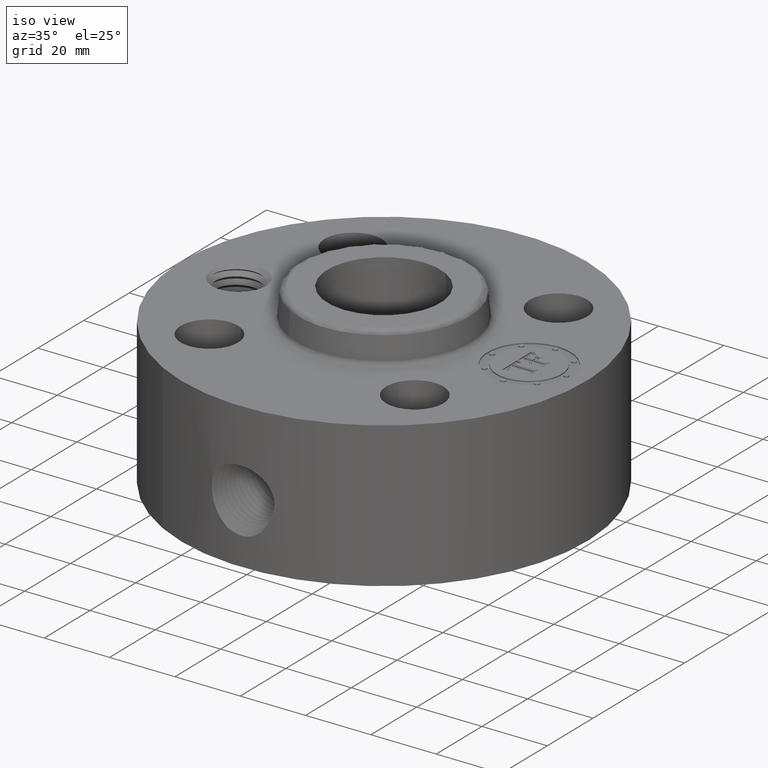
[diagram: clean part render]
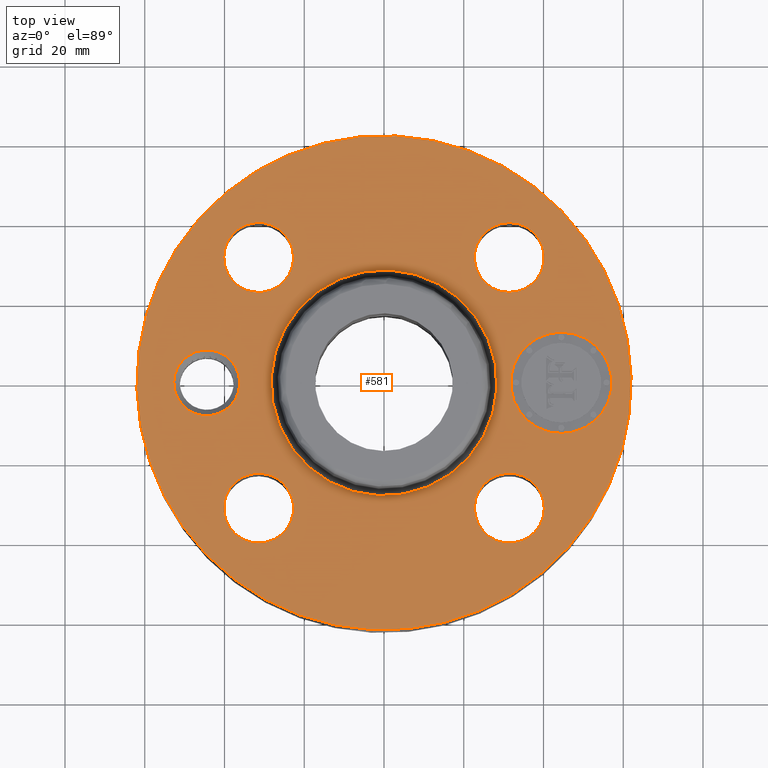
[diagram: tour spotlight — one face highlighted and labeled with its STEP entity id]
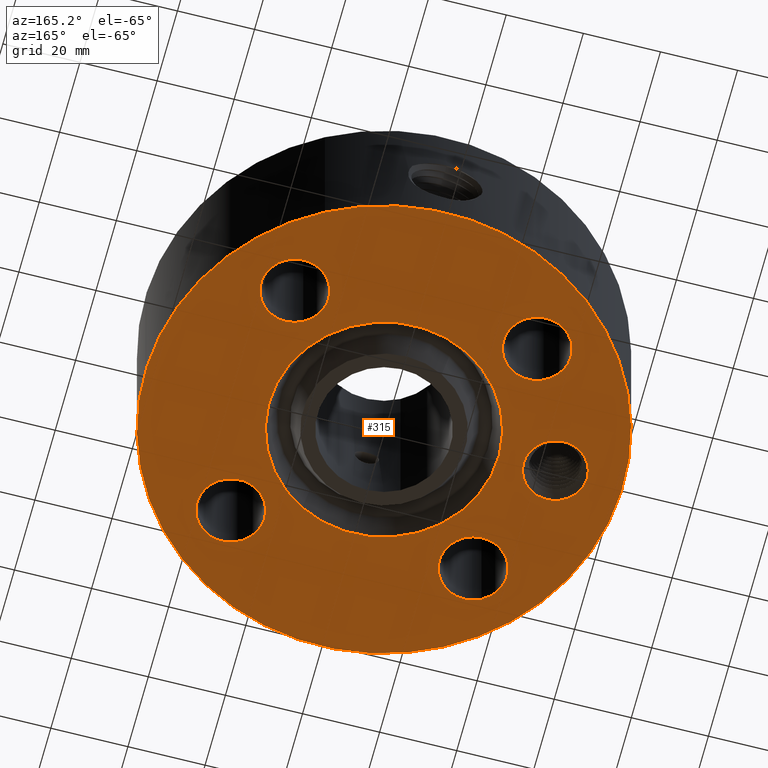
[diagram: tour spotlight — one face highlighted and labeled with its STEP entity id]
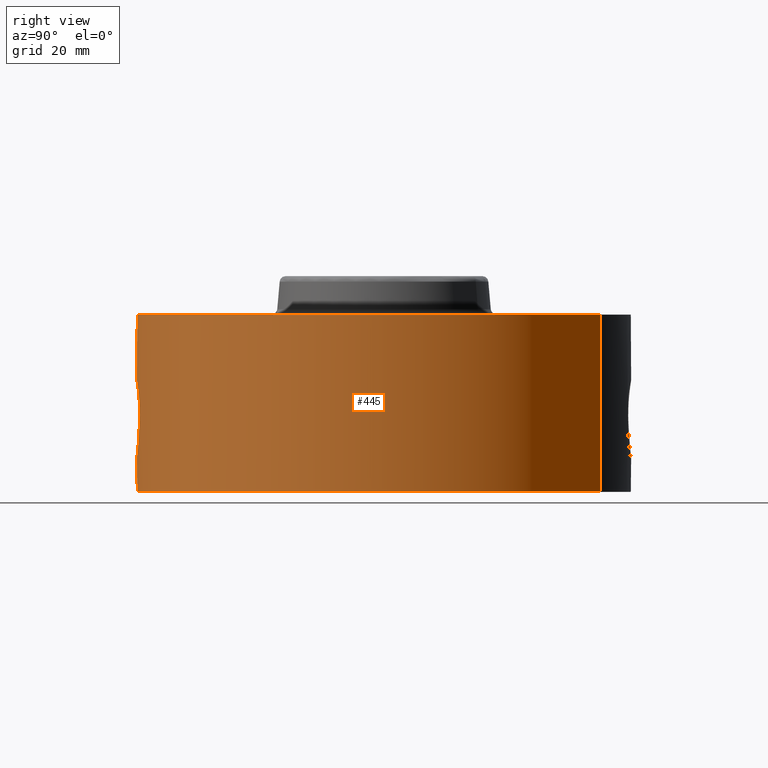
[diagram: tour spotlight — one face highlighted and labeled with its STEP entity id]
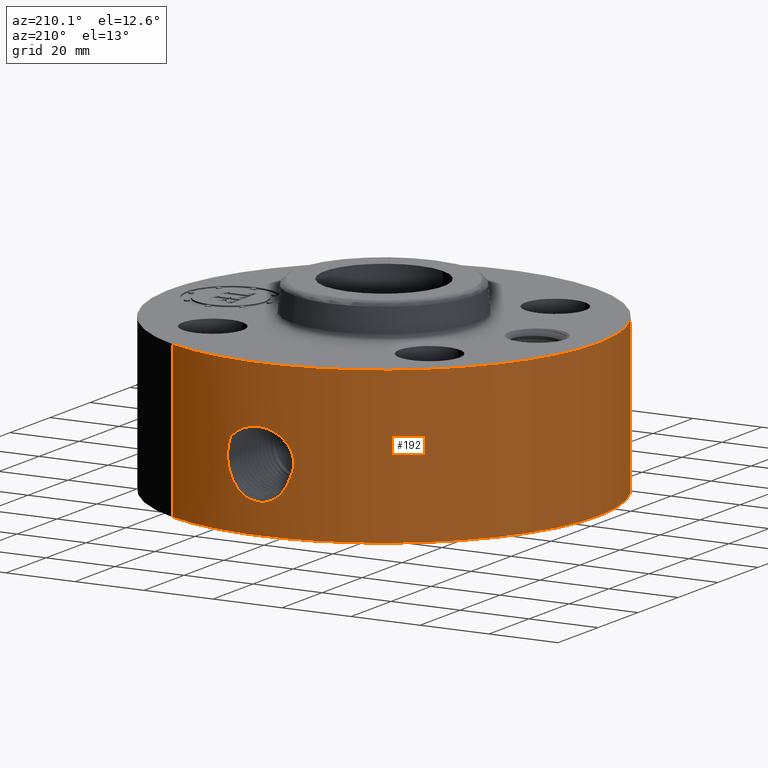
[diagram: tour spotlight — one face highlighted and labeled with its STEP entity id]
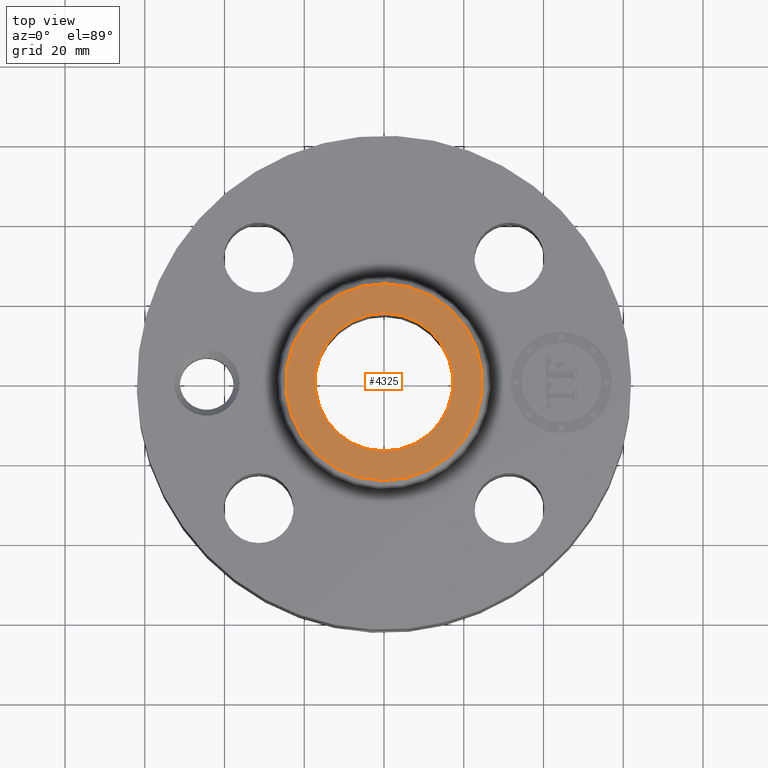
[diagram: tour spotlight — one face highlighted and labeled with its STEP entity id]
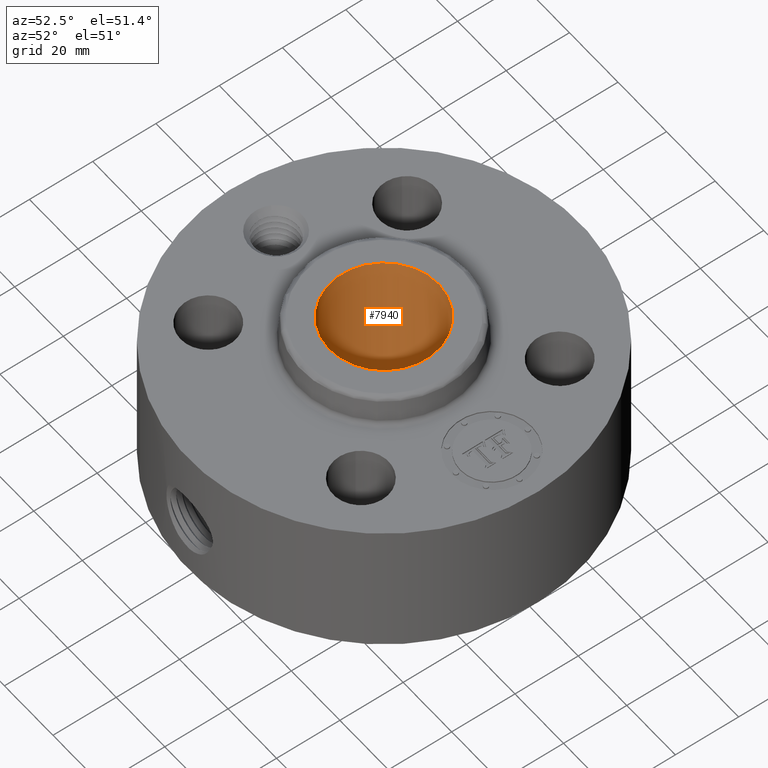
[diagram: tour spotlight — one face highlighted and labeled with its STEP entity id]
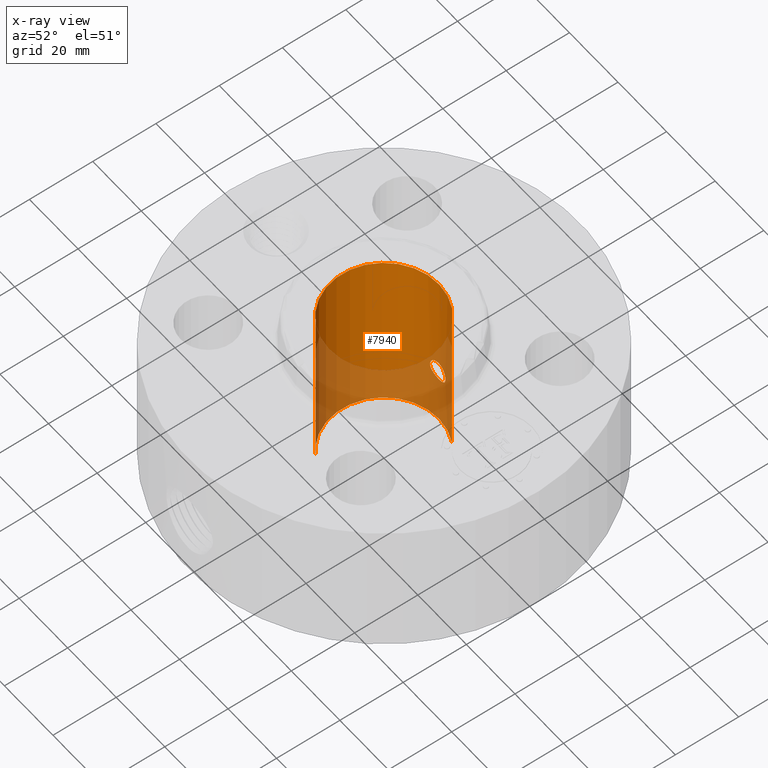
[diagram: x-ray of the same camera — body ghosted, this tour face saturated]
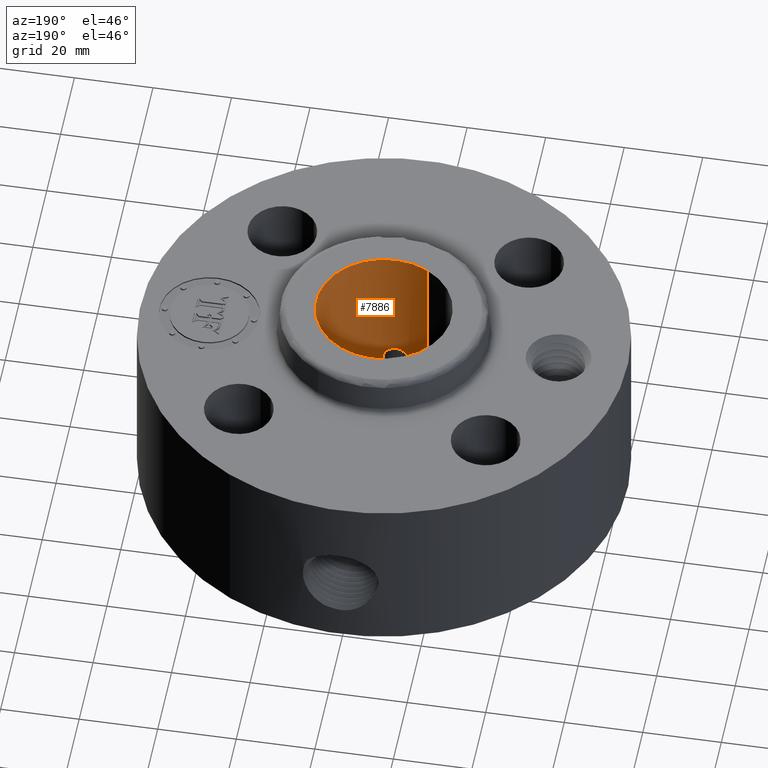
[diagram: tour spotlight — one face highlighted and labeled with its STEP entity id]
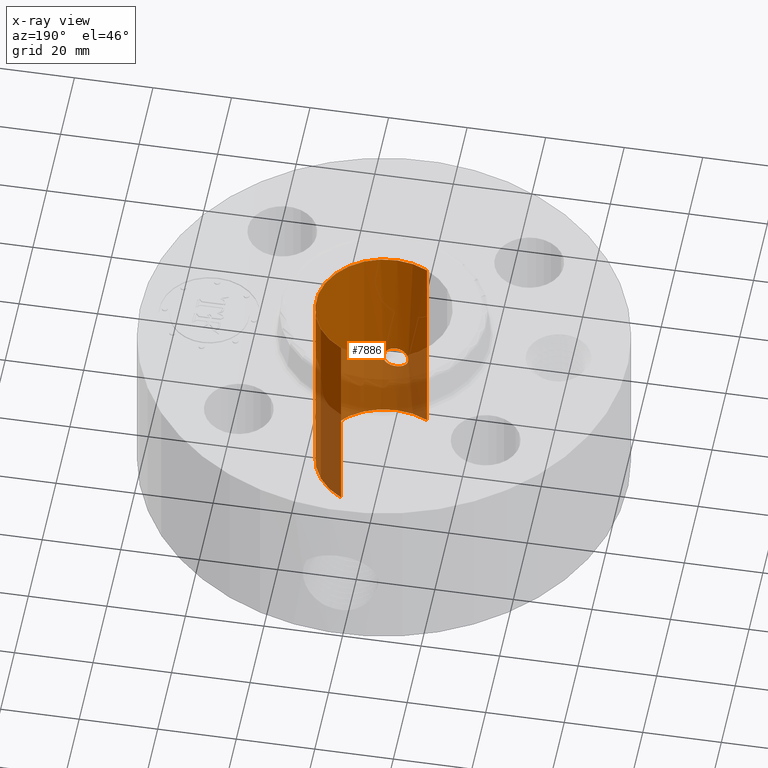
[diagram: x-ray of the same camera — body ghosted, this tour face saturated]
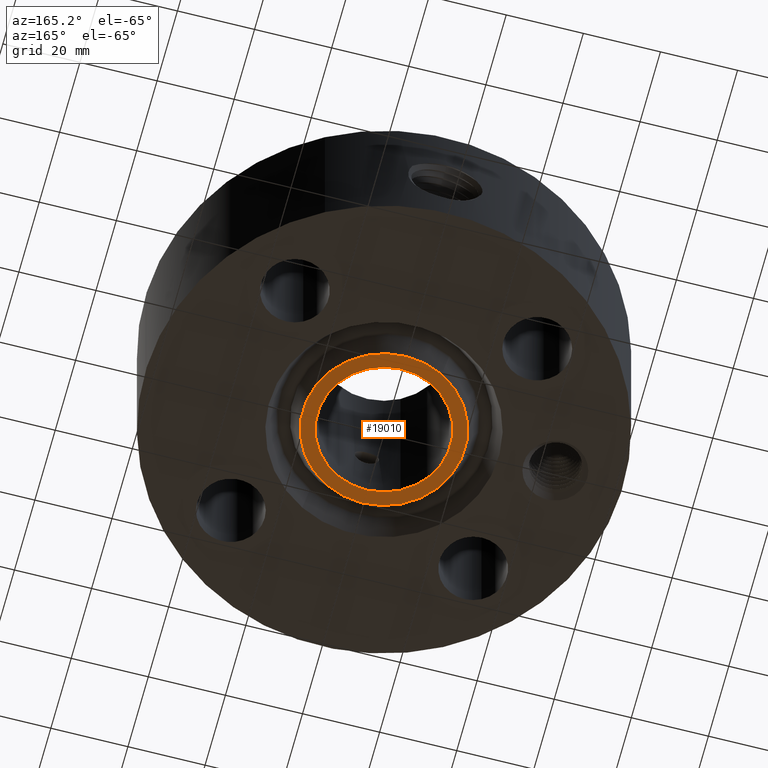
[diagram: tour spotlight — one face highlighted and labeled with its STEP entity id]
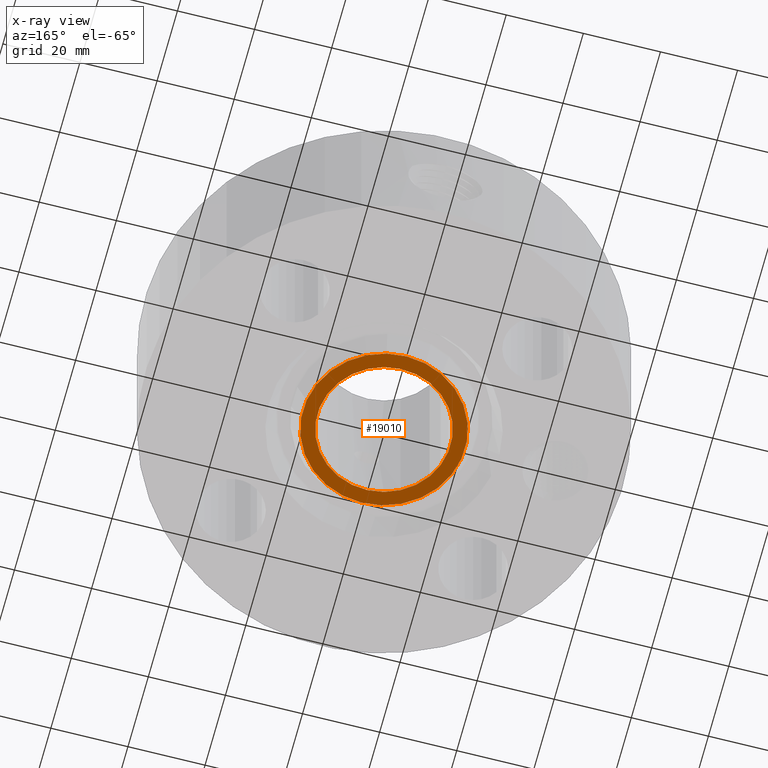
[diagram: x-ray of the same camera — body ghosted, this tour face saturated]
A machine part: a face-by-face anatomy tour. The part has 787 B-rep faces; the first image is the clean iso view, then the 8 largest visible faces are spotlighted one at a time (largest first), each with its STEP entity span.

Face 1 — top view, entity #581. In plain terms, the highlighted planar face has unit normal (0, 0, -1).
Definition (entity closure, byte-faithful):
#58=AXIS2_PLACEMENT_3D('Circle Axis2P3D',#56,#57,$) ;
#318=AXIS2_PLACEMENT_3D('Circle Axis2P3D',#316,#317,$) ;
#449=AXIS2_PLACEMENT_3D('Plane Axis2P3D',#446,#447,#448) ;
#457=AXIS2_PLACEMENT_3D('Circle Axis2P3D',#455,#456,$) ;
#466=AXIS2_PLACEMENT_3D('Circle Axis2P3D',#464,#465,$) ;
#475=AXIS2_PLACEMENT_3D('Circle Axis2P3D',#473,#474,$) ;
#484=AXIS2_PLACEMENT_3D('Circle Axis2P3D',#482,#483,$) ;
#493=AXIS2_PLACEMENT_3D('Circle Axis2P3D',#491,#492,$) ;
#502=AXIS2_PLACEMENT_3D('Circle Axis2P3D',#500,#501,$) ;
#511=AXIS2_PLACEMENT_3D('Circle Axis2P3D',#509,#510,$) ;
#520=AXIS2_PLACEMENT_3D('Circle Axis2P3D',#518,#519,$) ;
#529=AXIS2_PLACEMENT_3D('Circle Axis2P3D',#527,#528,$) ;
#538=AXIS2_PLACEMENT_3D('Circle Axis2P3D',#536,#537,$) ;
#547=AXIS2_PLACEMENT_3D('Circle Axis2P3D',#545,#546,$) ;
#556=AXIS2_PLACEMENT_3D('Circle Axis2P3D',#554,#555,$) ;
#565=AXIS2_PLACEMENT_3D('Circle Axis2P3D',#563,#564,$) ;
#574=AXIS2_PLACEMENT_3D('Circle Axis2P3D',#572,#573,$) ;
#53=CARTESIAN_POINT('Vertex',(-1.1697983142,-2.14130145102,1.75000000001)) ;
#56=CARTESIAN_POINT('Axis2P3D Location',(0.,7.99652833788E-018,1.75000000001)) ;
#60=CARTESIAN_POINT('Vertex',(1.1697983142,2.14130145102,1.75000000001)) ;
#316=CARTESIAN_POINT('Axis2P3D Location',(0.,7.99652833788E-018,1.75000000001)) ;
#446=CARTESIAN_POINT('Axis2P3D Location',(0.,2.44000000001,1.75000000001)) ;
#455=CARTESIAN_POINT('Axis2P3D Location',(-1.75000000001,-8.39223703654E-016,1.75000000001)) ;
#459=CARTESIAN_POINT('Vertex',(-2.03576282172,0.156112941009,1.75000000001)) ;
#461=CARTESIAN_POINT('Vertex',(-1.46423717829,-0.156112941009,1.75000000001)) ;
#464=CARTESIAN_POINT('Axis2P3D Location',(-1.75000000001,-8.39223703654E-016,1.75000000001)) ;
#473=CARTESIAN_POINT('Axis2P3D Location',(1.23743686708,-1.23743686708,1.75000000001)) ;
#477=CARTESIAN_POINT('Vertex',(0.934670883228,-1.07203505626,1.75000000001)) ;
#479=CARTESIAN_POINT('Vertex',(1.54020285093,-1.4028386779,1.75000000001)) ;
#482=CARTESIAN_POINT('Axis2P3D Location',(1.23743686708,-1.23743686708,1.75000000001)) ;
#491=CARTESIAN_POINT('Axis2P3D Location',(0.,0.,1.75000000001)) ;
#495=CARTESIAN_POINT('Vertex',(-0.534549824921,-0.978486891162,1.75000000001)) ;
#497=CARTESIAN_POINT('Vertex',(0.534549824921,0.978486891162,1.75000000001)) ;
#500=CARTESIAN_POINT('Axis2P3D Location',(0.,0.,1.75000000001)) ;
#509=CARTESIAN_POINT('Axis2P3D Location',(-1.23743686708,-1.23743686708,1.75000000001)) ;
#513=CARTESIAN_POINT('Vertex',(-1.4028386779,-1.54020285093,1.75000000001)) ;
#515=CARTESIAN_POINT('Vertex',(-1.07203505626,-0.934670883228,1.75000000001)) ;
#518=CARTESIAN_POINT('Axis2P3D Location',(-1.23743686708,-1.23743686708,1.75000000001)) ;
#527=CARTESIAN_POINT('Axis2P3D Location',(-1.23743686708,1.23743686708,1.75000000001)) ;
#531=CARTESIAN_POINT('Vertex',(-1.54020285093,1.4028386779,1.75000000001)) ;
#533=CARTESIAN_POINT('Vertex',(-0.934670883228,1.07203505626,1.75000000001)) ;
#536=CARTESIAN_POINT('Axis2P3D Location',(-1.23743686708,1.23743686708,1.75000000001)) ;
#545=CARTESIAN_POINT('Axis2P3D Location',(1.23743686708,1.23743686708,1.75000000001)) ;
#549=CARTESIAN_POINT('Vertex',(1.4028386779,1.54020285093,1.75000000001)) ;
#551=CARTESIAN_POINT('Vertex',(1.07203505626,0.934670883228,1.75000000001)) ;
#554=CARTESIAN_POINT('Axis2P3D Location',(1.23743686708,1.23743686708,1.75000000001)) ;
#563=CARTESIAN_POINT('Axis2P3D Location',(1.75000000001,0.,1.75000000001)) ;
#567=CARTESIAN_POINT('Vertex',(1.75000000001,0.499999995002,1.75000000001)) ;
#569=CARTESIAN_POINT('Vertex',(1.75000000001,-0.499999995002,1.75000000001)) ;
#572=CARTESIAN_POINT('Axis2P3D Location',(1.75000000001,-2.79741234551E-016,1.75000000001)) ;
#57=DIRECTION('Axis2P3D Direction',(0.,0.,-0.0393700787402)) ;
#317=DIRECTION('Axis2P3D Direction',(0.,0.,-0.0393700787402)) ;
#447=DIRECTION('Axis2P3D Direction',(0.,0.,-0.0393700787402)) ;
#448=DIRECTION('Axis2P3D XDirection',(0.0393700787402,0.,0.)) ;
#456=DIRECTION('Axis2P3D Direction',(0.,0.,-0.0393700787402)) ;
#465=DIRECTION('Axis2P3D Direction',(0.,0.,-0.0393700787402)) ;
#474=DIRECTION('Axis2P3D Direction',(0.,0.,-0.0393700787402)) ;
#483=DIRECTION('Axis2P3D Direction',(0.,0.,-0.0393700787402)) ;
#492=DIRECTION('Axis2P3D Direction',(0.,0.,-0.0393700787402)) ;
#501=DIRECTION('Axis2P3D Direction',(0.,0.,-0.0393700787402)) ;
#510=DIRECTION('Axis2P3D Direction',(0.,0.,-0.0393700787402)) ;
#519=DIRECTION('Axis2P3D Direction',(0.,0.,-0.0393700787402)) ;
#528=DIRECTION('Axis2P3D Direction',(0.,0.,-0.0393700787402)) ;
#537=DIRECTION('Axis2P3D Direction',(0.,0.,-0.0393700787402)) ;
#546=DIRECTION('Axis2P3D Direction',(0.,0.,-0.0393700787402)) ;
#555=DIRECTION('Axis2P3D Direction',(0.,0.,-0.0393700787402)) ;
#564=DIRECTION('Axis2P3D Direction',(0.,0.,-0.0393700787402)) ;
#573=DIRECTION('Axis2P3D Direction',(0.,0.,-0.0393700787402)) ;
#452=ORIENTED_EDGE('',*,*,#320,.F.) ;
#453=ORIENTED_EDGE('',*,*,#62,.F.) ;
#470=ORIENTED_EDGE('',*,*,#463,.T.) ;
#471=ORIENTED_EDGE('',*,*,#468,.T.) ;
#488=ORIENTED_EDGE('',*,*,#481,.T.) ;
#489=ORIENTED_EDGE('',*,*,#486,.T.) ;
#506=ORIENTED_EDGE('',*,*,#499,.T.) ;
#507=ORIENTED_EDGE('',*,*,#504,.T.) ;
#524=ORIENTED_EDGE('',*,*,#517,.T.) ;
#525=ORIENTED_EDGE('',*,*,#522,.T.) ;
#542=ORIENTED_EDGE('',*,*,#535,.T.) ;
#543=ORIENTED_EDGE('',*,*,#540,.T.) ;
#560=ORIENTED_EDGE('',*,*,#553,.T.) ;
#561=ORIENTED_EDGE('',*,*,#558,.T.) ;
#578=ORIENTED_EDGE('',*,*,#571,.T.) ;
#579=ORIENTED_EDGE('',*,*,#576,.T.) ;
#472=FACE_BOUND('',#469,.T.) ;
#490=FACE_BOUND('',#487,.T.) ;
#508=FACE_BOUND('',#505,.T.) ;
#526=FACE_BOUND('',#523,.T.) ;
#544=FACE_BOUND('',#541,.T.) ;
#562=FACE_BOUND('',#559,.T.) ;
#580=FACE_BOUND('',#577,.T.) ;
#581=ADVANCED_FACE('PartBody',(#454,#472,#490,#508,#526,#544,#562,#580),#450,.F.) ;
#59=CIRCLE('generated circle',#58,2.44000000001) ;
#319=CIRCLE('generated circle',#318,2.44000000001) ;
#458=CIRCLE('generated circle',#457,0.325625000001) ;
#467=CIRCLE('generated circle',#466,0.325625000001) ;
#476=CIRCLE('generated circle',#475,0.345000000001) ;
#485=CIRCLE('generated circle',#484,0.345000000001) ;
#494=CIRCLE('generated circle',#493,1.11497987045) ;
#503=CIRCLE('generated circle',#502,1.11497987045) ;
#512=CIRCLE('generated circle',#511,0.345000000001) ;
#521=CIRCLE('generated circle',#520,0.345000000001) ;
#530=CIRCLE('generated circle',#529,0.345000000001) ;
#539=CIRCLE('generated circle',#538,0.345000000001) ;
#548=CIRCLE('generated circle',#547,0.345000000001) ;
#557=CIRCLE('generated circle',#556,0.345000000001) ;
#566=CIRCLE('generated circle',#565,0.499999995002) ;
#575=CIRCLE('generated circle',#574,0.499999995002) ;
#62=EDGE_CURVE('',#54,#61,#59,.T.) ;
#320=EDGE_CURVE('',#61,#54,#319,.T.) ;
#463=EDGE_CURVE('',#460,#462,#458,.T.) ;
#468=EDGE_CURVE('',#462,#460,#467,.T.) ;
#481=EDGE_CURVE('',#478,#480,#476,.T.) ;
#486=EDGE_CURVE('',#480,#478,#485,.T.) ;
#499=EDGE_CURVE('',#496,#498,#494,.T.) ;
#504=EDGE_CURVE('',#498,#496,#503,.T.) ;
#517=EDGE_CURVE('',#514,#516,#512,.T.) ;
#522=EDGE_CURVE('',#516,#514,#521,.T.) ;
#535=EDGE_CURVE('',#532,#534,#530,.T.) ;
#540=EDGE_CURVE('',#534,#532,#539,.T.) ;
#553=EDGE_CURVE('',#550,#552,#548,.T.) ;
#558=EDGE_CURVE('',#552,#550,#557,.T.) ;
#571=EDGE_CURVE('',#568,#570,#566,.T.) ;
#576=EDGE_CURVE('',#570,#568,#575,.T.) ;
#451=EDGE_LOOP('',(#452,#453)) ;
#469=EDGE_LOOP('',(#470,#471)) ;
#487=EDGE_LOOP('',(#488,#489)) ;
#505=EDGE_LOOP('',(#506,#507)) ;
#523=EDGE_LOOP('',(#524,#525)) ;
#541=EDGE_LOOP('',(#542,#543)) ;
#559=EDGE_LOOP('',(#560,#561)) ;
#577=EDGE_LOOP('',(#578,#579)) ;
#454=FACE_OUTER_BOUND('',#451,.T.) ;
#450=PLANE('',#449) ;
#54=VERTEX_POINT('',#53) ;
#61=VERTEX_POINT('',#60) ;
#460=VERTEX_POINT('',#459) ;
#462=VERTEX_POINT('',#461) ;
#478=VERTEX_POINT('',#477) ;
#480=VERTEX_POINT('',#479) ;
#496=VERTEX_POINT('',#495) ;
#498=VERTEX_POINT('',#497) ;
#514=VERTEX_POINT('',#513) ;
#516=VERTEX_POINT('',#515) ;
#532=VERTEX_POINT('',#531) ;
#534=VERTEX_POINT('',#533) ;
#550=VERTEX_POINT('',#549) ;
#552=VERTEX_POINT('',#551) ;
#568=VERTEX_POINT('',#567) ;
#570=VERTEX_POINT('',#569) ;

Face 2 — auxiliary view, entity #315. In plain terms, the highlighted planar face has unit normal (0, 0, -1).
Definition (entity closure, byte-faithful):
#42=AXIS2_PLACEMENT_3D('Circle Axis2P3D',#40,#41,$) ;
#196=AXIS2_PLACEMENT_3D('Plane Axis2P3D',#193,#194,#195) ;
#200=AXIS2_PLACEMENT_3D('Circle Axis2P3D',#198,#199,$) ;
#209=AXIS2_PLACEMENT_3D('Circle Axis2P3D',#207,#208,$) ;
#218=AXIS2_PLACEMENT_3D('Circle Axis2P3D',#216,#217,$) ;
#227=AXIS2_PLACEMENT_3D('Circle Axis2P3D',#225,#226,$) ;
#236=AXIS2_PLACEMENT_3D('Circle Axis2P3D',#234,#235,$) ;
#245=AXIS2_PLACEMENT_3D('Circle Axis2P3D',#243,#244,$) ;
#254=AXIS2_PLACEMENT_3D('Circle Axis2P3D',#252,#253,$) ;
#263=AXIS2_PLACEMENT_3D('Circle Axis2P3D',#261,#262,$) ;
#272=AXIS2_PLACEMENT_3D('Circle Axis2P3D',#270,#271,$) ;
#281=AXIS2_PLACEMENT_3D('Circle Axis2P3D',#279,#280,$) ;
#290=AXIS2_PLACEMENT_3D('Circle Axis2P3D',#288,#289,$) ;
#299=AXIS2_PLACEMENT_3D('Circle Axis2P3D',#297,#298,$) ;
#308=AXIS2_PLACEMENT_3D('Circle Axis2P3D',#306,#307,$) ;
#40=CARTESIAN_POINT('Axis2P3D Location',(0.,7.99652833788E-018,1.39870617276E-016)) ;
#44=CARTESIAN_POINT('Vertex',(-1.1697983142,-2.14130145102,0.)) ;
#46=CARTESIAN_POINT('Vertex',(1.1697983142,2.14130145102,0.)) ;
#193=CARTESIAN_POINT('Axis2P3D Location',(0.,0.680000000003,0.)) ;
#198=CARTESIAN_POINT('Axis2P3D Location',(0.,0.,0.)) ;
#207=CARTESIAN_POINT('Axis2P3D Location',(-1.75000000001,0.,0.)) ;
#211=CARTESIAN_POINT('Vertex',(-1.46423717829,-0.156112941009,0.)) ;
#213=CARTESIAN_POINT('Vertex',(-2.03576282172,0.156112941009,0.)) ;
#216=CARTESIAN_POINT('Axis2P3D Location',(-1.75000000001,0.,0.)) ;
#225=CARTESIAN_POINT('Axis2P3D Location',(1.23743686708,-1.23743686708,0.)) ;
#229=CARTESIAN_POINT('Vertex',(1.54020285093,-1.4028386779,0.)) ;
#231=CARTESIAN_POINT('Vertex',(0.934670883228,-1.07203505626,0.)) ;
#234=CARTESIAN_POINT('Axis2P3D Location',(1.23743686708,-1.23743686708,0.)) ;
#243=CARTESIAN_POINT('Axis2P3D Location',(-1.23743686708,-1.23743686708,0.)) ;
#247=CARTESIAN_POINT('Vertex',(-1.07203505626,-0.934670883228,0.)) ;
#249=CARTESIAN_POINT('Vertex',(-1.4028386779,-1.54020285093,0.)) ;
#252=CARTESIAN_POINT('Axis2P3D Location',(-1.23743686708,-1.23743686708,0.)) ;
#261=CARTESIAN_POINT('Axis2P3D Location',(-1.23743686708,1.23743686708,0.)) ;
#265=CARTESIAN_POINT('Vertex',(-0.934670883228,1.07203505626,0.)) ;
#267=CARTESIAN_POINT('Vertex',(-1.54020285093,1.4028386779,0.)) ;
#270=CARTESIAN_POINT('Axis2P3D Location',(-1.23743686708,1.23743686708,0.)) ;
#279=CARTESIAN_POINT('Axis2P3D Location',(1.23743686708,1.23743686708,0.)) ;
#283=CARTESIAN_POINT('Vertex',(1.07203505626,0.934670883228,0.)) ;
#285=CARTESIAN_POINT('Vertex',(1.4028386779,1.54020285093,0.)) ;
#288=CARTESIAN_POINT('Axis2P3D Location',(1.23743686708,1.23743686708,0.)) ;
#297=CARTESIAN_POINT('Axis2P3D Location',(-1.39870617276E-016,1.39870617276E-016,0.)) ;
#301=CARTESIAN_POINT('Vertex',(0.561886731246,-1.02852676254,3.49676543189E-017)) ;
#303=CARTESIAN_POINT('Vertex',(-0.561886731246,1.02852676254,-3.49676543189E-017)) ;
#306=CARTESIAN_POINT('Axis2P3D Location',(6.99353086378E-017,1.39870617276E-016,0.)) ;
#41=DIRECTION('Axis2P3D Direction',(0.,0.,-0.0393700787402)) ;
#194=DIRECTION('Axis2P3D Direction',(0.,0.,-0.0393700787402)) ;
#195=DIRECTION('Axis2P3D XDirection',(0.0393700787402,0.,0.)) ;
#199=DIRECTION('Axis2P3D Direction',(0.,0.,-0.0393700787402)) ;
#208=DIRECTION('Axis2P3D Direction',(0.,0.,-0.0393700787402)) ;
#217=DIRECTION('Axis2P3D Direction',(0.,0.,-0.0393700787402)) ;
#226=DIRECTION('Axis2P3D Direction',(0.,0.,-0.0393700787402)) ;
#235=DIRECTION('Axis2P3D Direction',(0.,0.,-0.0393700787402)) ;
#244=DIRECTION('Axis2P3D Direction',(0.,0.,-0.0393700787402)) ;
#253=DIRECTION('Axis2P3D Direction',(0.,0.,-0.0393700787402)) ;
#262=DIRECTION('Axis2P3D Direction',(0.,0.,-0.0393700787402)) ;
#271=DIRECTION('Axis2P3D Direction',(0.,0.,-0.0393700787402)) ;
#280=DIRECTION('Axis2P3D Direction',(0.,0.,-0.0393700787402)) ;
#289=DIRECTION('Axis2P3D Direction',(0.,0.,-0.0393700787402)) ;
#298=DIRECTION('Axis2P3D Direction',(0.,0.,-0.0393700787402)) ;
#307=DIRECTION('Axis2P3D Direction',(0.,0.,-0.0393700787402)) ;
#204=ORIENTED_EDGE('',*,*,#48,.T.) ;
#205=ORIENTED_EDGE('',*,*,#202,.T.) ;
#222=ORIENTED_EDGE('',*,*,#215,.F.) ;
#223=ORIENTED_EDGE('',*,*,#220,.F.) ;
#240=ORIENTED_EDGE('',*,*,#233,.F.) ;
#241=ORIENTED_EDGE('',*,*,#238,.F.) ;
#258=ORIENTED_EDGE('',*,*,#251,.F.) ;
#259=ORIENTED_EDGE('',*,*,#256,.F.) ;
#276=ORIENTED_EDGE('',*,*,#269,.F.) ;
#277=ORIENTED_EDGE('',*,*,#274,.F.) ;
#294=ORIENTED_EDGE('',*,*,#287,.F.) ;
#295=ORIENTED_EDGE('',*,*,#292,.F.) ;
#312=ORIENTED_EDGE('',*,*,#305,.F.) ;
#313=ORIENTED_EDGE('',*,*,#310,.F.) ;
#224=FACE_BOUND('',#221,.T.) ;
#242=FACE_BOUND('',#239,.T.) ;
#260=FACE_BOUND('',#257,.T.) ;
#278=FACE_BOUND('',#275,.T.) ;
#296=FACE_BOUND('',#293,.T.) ;
#314=FACE_BOUND('',#311,.T.) ;
#315=ADVANCED_FACE('PartBody',(#206,#224,#242,#260,#278,#296,#314),#197,.T.) ;
#43=CIRCLE('generated circle',#42,2.44000000001) ;
#201=CIRCLE('generated circle',#200,2.44000000001) ;
#210=CIRCLE('generated circle',#209,0.325625000001) ;
#219=CIRCLE('generated circle',#218,0.325625000001) ;
#228=CIRCLE('generated circle',#227,0.345000000001) ;
#237=CIRCLE('generated circle',#236,0.345000000001) ;
#246=CIRCLE('generated circle',#245,0.345000000001) ;
#255=CIRCLE('generated circle',#254,0.345000000001) ;
#264=CIRCLE('generated circle',#263,0.345000000001) ;
#273=CIRCLE('generated circle',#272,0.345000000001) ;
#282=CIRCLE('generated circle',#281,0.345000000001) ;
#291=CIRCLE('generated circle',#290,0.345000000001) ;
#300=CIRCLE('generated circle',#299,1.172) ;
#309=CIRCLE('generated circle',#308,1.172) ;
#48=EDGE_CURVE('',#45,#47,#43,.T.) ;
#202=EDGE_CURVE('',#47,#45,#201,.T.) ;
#215=EDGE_CURVE('',#212,#214,#210,.T.) ;
#220=EDGE_CURVE('',#214,#212,#219,.T.) ;
#233=EDGE_CURVE('',#230,#232,#228,.T.) ;
#238=EDGE_CURVE('',#232,#230,#237,.T.) ;
#251=EDGE_CURVE('',#248,#250,#246,.T.) ;
#256=EDGE_CURVE('',#250,#248,#255,.T.) ;
#269=EDGE_CURVE('',#266,#268,#264,.T.) ;
#274=EDGE_CURVE('',#268,#266,#273,.T.) ;
#287=EDGE_CURVE('',#284,#286,#282,.T.) ;
#292=EDGE_CURVE('',#286,#284,#291,.T.) ;
#305=EDGE_CURVE('',#302,#304,#300,.T.) ;
#310=EDGE_CURVE('',#304,#302,#309,.T.) ;
#203=EDGE_LOOP('',(#204,#205)) ;
#221=EDGE_LOOP('',(#222,#223)) ;
#239=EDGE_LOOP('',(#240,#241)) ;
#257=EDGE_LOOP('',(#258,#259)) ;
#275=EDGE_LOOP('',(#276,#277)) ;
#293=EDGE_LOOP('',(#294,#295)) ;
#311=EDGE_LOOP('',(#312,#313)) ;
#206=FACE_OUTER_BOUND('',#203,.T.) ;
#197=PLANE('',#196) ;
#45=VERTEX_POINT('',#44) ;
#47=VERTEX_POINT('',#46) ;
#212=VERTEX_POINT('',#211) ;
#214=VERTEX_POINT('',#213) ;
#230=VERTEX_POINT('',#229) ;
#232=VERTEX_POINT('',#231) ;
#248=VERTEX_POINT('',#247) ;
#250=VERTEX_POINT('',#249) ;
#266=VERTEX_POINT('',#265) ;
#268=VERTEX_POINT('',#267) ;
#284=VERTEX_POINT('',#283) ;
#286=VERTEX_POINT('',#285) ;
#302=VERTEX_POINT('',#301) ;
#304=VERTEX_POINT('',#303) ;

Face 3 — right view, entity #445. In plain terms, the highlighted cylindrical surface (partial cylindrical patch) has radius 61.976 mm, axis along (0, 0, -1).
Definition (entity closure, byte-faithful):
#38=AXIS2_PLACEMENT_3D('Cylinder Axis2P3D',#35,#36,#37) ;
#200=AXIS2_PLACEMENT_3D('Circle Axis2P3D',#198,#199,$) ;
#318=AXIS2_PLACEMENT_3D('Circle Axis2P3D',#316,#317,$) ;
#35=CARTESIAN_POINT('Axis2P3D Location',(0.,7.99652833788E-018,1.065)) ;
#44=CARTESIAN_POINT('Vertex',(-1.1697983142,-2.14130145102,0.)) ;
#46=CARTESIAN_POINT('Vertex',(1.1697983142,2.14130145102,0.)) ;
#49=CARTESIAN_POINT('Line Origine',(-1.1697983142,-2.14130145102,0.875000000004)) ;
#53=CARTESIAN_POINT('Vertex',(-1.1697983142,-2.14130145102,1.75000000001)) ;
#60=CARTESIAN_POINT('Vertex',(1.1697983142,2.14130145102,1.75000000001)) ;
#63=CARTESIAN_POINT('Line Origine',(1.1697983142,2.14130145102,0.875000000004)) ;
#198=CARTESIAN_POINT('Axis2P3D Location',(0.,0.,0.)) ;
#316=CARTESIAN_POINT('Axis2P3D Location',(0.,7.99652833788E-018,1.75000000001)) ;
#328=CARTESIAN_POINT('Control Point',(0.161921597663,-2.43462140717,1.06474245937)) ;
#329=CARTESIAN_POINT('Control Point',(0.124761681235,-2.4370928358,1.08394650334)) ;
#330=CARTESIAN_POINT('Control Point',(0.0845285028812,-2.43901250292,1.0973010247)) ;
#331=CARTESIAN_POINT('Control Point',(0.04262662722,-2.43998754964,1.10403308462)) ;
#332=CARTESIAN_POINT('Control Point',(0.000718733640323,-2.43999989415,1.10411849633)) ;
#333=CARTESIAN_POINT('Vertex',(0.161921603958,-2.43462140677,1.06474245628)) ;
#335=CARTESIAN_POINT('Vertex',(0.000718469144975,-2.43999989423,1.10411850216)) ;
#339=CARTESIAN_POINT('Control Point',(0.16989837306,-2.43407776024,1.06094225976)) ;
#340=CARTESIAN_POINT('Control Point',(0.167252430961,-2.43426244672,1.06223769884)) ;
#341=CARTESIAN_POINT('Control Point',(0.164593291318,-2.43444371839,1.06350443812)) ;
#342=CARTESIAN_POINT('Control Point',(0.161921603304,-2.4346214068,1.06474245341)) ;
#343=CARTESIAN_POINT('Vertex',(0.16989837306,-2.43407776024,1.06094225976)) ;
#347=CARTESIAN_POINT('Control Point',(0.328116387489,-2.4178378019,0.618661723858)) ;
#348=CARTESIAN_POINT('Control Point',(0.351266827743,-2.4146961359,0.657920672743)) ;
#349=CARTESIAN_POINT('Control Point',(0.367537071204,-2.41220597726,0.701967162851)) ;
#350=CARTESIAN_POINT('Control Point',(0.374754425764,-2.41102143699,0.749647117412)) ;
#351=CARTESIAN_POINT('Control Point',(0.370017228773,-2.41184047688,0.818715678681)) ;
#352=CARTESIAN_POINT('Control Point',(0.346589006547,-2.41527741699,0.882571964521)) ;
#353=CARTESIAN_POINT('Control Point',(0.33766835467,-2.41655315485,0.901622048979)) ;
#354=CARTESIAN_POINT('Control Point',(0.307764266321,-2.42066054448,0.953874985379)) ;
#355=CARTESIAN_POINT('Control Point',(0.2669988542,-2.42558827079,0.998208638786)) ;
#356=CARTESIAN_POINT('Control Point',(0.236947856091,-2.42878500544,1.02314596168)) ;
#357=CARTESIAN_POINT('Control Point',(0.20435585835,-2.43167263137,1.04407205891)) ;
#358=CARTESIAN_POINT('Control Point',(0.16989837306,-2.43407776024,1.06094225976)) ;
#359=CARTESIAN_POINT('Vertex',(0.328116863787,-2.41783753267,0.618661777742)) ;
#363=CARTESIAN_POINT('Control Point',(0.32042422399,-2.41886922274,0.600797421045)) ;
#364=CARTESIAN_POINT('Control Point',(0.323151377015,-2.41850796059,0.60668095736)) ;
#365=CARTESIAN_POINT('Control Point',(0.32571735253,-2.41816336849,0.612639984977)) ;
#366=CARTESIAN_POINT('Control Point',(0.328118231473,-2.41783755166,0.618665577785)) ;
#367=CARTESIAN_POINT('Vertex',(0.32042488499,-2.41886937056,0.600798487442)) ;
#371=CARTESIAN_POINT('Control Point',(0.0268393762839,-2.43985238241,0.340897556554)) ;
#372=CARTESIAN_POINT('Control Point',(0.111814843383,-2.43891761744,0.352087011189)) ;
#373=CARTESIAN_POINT('Control Point',(0.192381419443,-2.4342320407,0.392047143257)) ;
#374=CARTESIAN_POINT('Control Point',(0.253315060822,-2.42735806859,0.454291321926)) ;
#375=CARTESIAN_POINT('Control Point',(0.2960420997,-2.42209909205,0.525167593064)) ;
#376=CARTESIAN_POINT('Control Point',(0.320424554948,-2.4188691789,0.600798563388)) ;
#377=CARTESIAN_POINT('Vertex',(0.0268393762839,-2.43985238241,0.340897556554)) ;
#381=CARTESIAN_POINT('Control Point',(0.0268393762839,-2.43985238241,0.340897556554)) ;
#382=CARTESIAN_POINT('Control Point',(0.0178847904718,-2.43995088652,0.340836461491)) ;
#383=CARTESIAN_POINT('Control Point',(0.00893312174487,-2.44000001,0.340995456562)) ;
#384=CARTESIAN_POINT('Control Point',(-2.72878353298E-006,-2.44000000001,0.341374667803)) ;
#385=CARTESIAN_POINT('Vertex',(-2.72878353376E-006,-2.44000000001,0.341374667803)) ;
#389=CARTESIAN_POINT('Control Point',(-0.165475449319,-2.43438244237,0.375082959451)) ;
#390=CARTESIAN_POINT('Control Point',(-0.112561961608,-2.43797919981,0.354988749023)) ;
#391=CARTESIAN_POINT('Control Point',(-0.0565391785844,-2.43999993678,0.343773908797)) ;
#392=CARTESIAN_POINT('Control Point',(-2.72878353296E-006,-2.44000000001,0.341374667803)) ;
#393=CARTESIAN_POINT('Vertex',(-0.165475449319,-2.43438244237,0.375082959451)) ;
#397=CARTESIAN_POINT('Control Point',(-0.165475449319,-2.43438244237,0.375082959451)) ;
#398=CARTESIAN_POINT('Control Point',(-0.175740355042,-2.43368469256,0.380334541078)) ;
#399=CARTESIAN_POINT('Control Point',(-0.185738682548,-2.43293968557,0.386087518414)) ;
#400=CARTESIAN_POINT('Control Point',(-0.195421989316,-2.43216164063,0.392285375744)) ;
#401=CARTESIAN_POINT('Vertex',(-0.195421989316,-2.43216164063,0.392285375744)) ;
#405=CARTESIAN_POINT('Control Point',(-0.195421989316,-2.43216164063,0.392285375744)) ;
#406=CARTESIAN_POINT('Control Point',(-0.247998274294,-2.42793718365,0.425937136214)) ;
#407=CARTESIAN_POINT('Control Point',(-0.293011532849,-2.42289055351,0.470601242802)) ;
#408=CARTESIAN_POINT('Control Point',(-0.328229741814,-2.41805808377,0.522425706065)) ;
#409=CARTESIAN_POINT('Control Point',(-0.382261846784,-2.41005605303,0.639676923908)) ;
#410=CARTESIAN_POINT('Control Point',(-0.395270517985,-2.4077303253,0.76806572648)) ;
#411=CARTESIAN_POINT('Control Point',(-0.390965859779,-2.40847371332,0.835617745374)) ;
#412=CARTESIAN_POINT('Control Point',(-0.375402848798,-2.41110143568,0.902021538032)) ;
#413=CARTESIAN_POINT('Control Point',(-0.348525603778,-2.41498031122,0.964426404841)) ;
#414=CARTESIAN_POINT('Vertex',(-0.348525603778,-2.41498031122,0.964426404841)) ;
#418=CARTESIAN_POINT('Control Point',(-0.348525603778,-2.41498031122,0.964426404841)) ;
#419=CARTESIAN_POINT('Control Point',(-0.294301928901,-2.4228057742,1.02385968626)) ;
#420=CARTESIAN_POINT('Control Point',(-0.226049800302,-2.43110253761,1.06810664466)) ;
#421=CARTESIAN_POINT('Control Point',(-0.151999405679,-2.43708485742,1.09575225398)) ;
#422=CARTESIAN_POINT('Control Point',(-0.0753414238402,-2.44000079858,1.10784713779)) ;
#423=CARTESIAN_POINT('Control Point',(2.5857935475E-005,-2.43999999987,1.10415298447)) ;
#424=CARTESIAN_POINT('Vertex',(2.5857935474E-005,-2.43999999987,1.10415298447)) ;
#428=CARTESIAN_POINT('Control Point',(0.000718469128862,-2.43999989423,1.10411850214)) ;
#429=CARTESIAN_POINT('Control Point',(0.000372184810272,-2.4399999962,1.10413600914)) ;
#430=CARTESIAN_POINT('Control Point',(2.58579482058E-005,-2.43999999987,1.10415298447)) ;
#36=DIRECTION('Axis2P3D Direction',(0.,0.,-0.0393700787402)) ;
#37=DIRECTION('Axis2P3D XDirection',(0.0188750212049,0.0345504945626,0.)) ;
#50=DIRECTION('Vector Direction',(0.,0.,-0.0393700787402)) ;
#64=DIRECTION('Vector Direction',(0.,0.,-0.0393700787402)) ;
#199=DIRECTION('Axis2P3D Direction',(0.,0.,-0.0393700787402)) ;
#317=DIRECTION('Axis2P3D Direction',(0.,0.,-0.0393700787402)) ;
#51=VECTOR('Line Direction',#50,0.0393700787402) ;
#65=VECTOR('Line Direction',#64,0.0393700787402) ;
#322=ORIENTED_EDGE('',*,*,#202,.F.) ;
#323=ORIENTED_EDGE('',*,*,#67,.T.) ;
#324=ORIENTED_EDGE('',*,*,#320,.T.) ;
#325=ORIENTED_EDGE('',*,*,#55,.F.) ;
#433=ORIENTED_EDGE('',*,*,#337,.F.) ;
#434=ORIENTED_EDGE('',*,*,#345,.F.) ;
#435=ORIENTED_EDGE('',*,*,#361,.F.) ;
#436=ORIENTED_EDGE('',*,*,#369,.F.) ;
#437=ORIENTED_EDGE('',*,*,#379,.F.) ;
#438=ORIENTED_EDGE('',*,*,#387,.T.) ;
#439=ORIENTED_EDGE('',*,*,#395,.F.) ;
#440=ORIENTED_EDGE('',*,*,#403,.T.) ;
#441=ORIENTED_EDGE('',*,*,#416,.T.) ;
#442=ORIENTED_EDGE('',*,*,#426,.T.) ;
#443=ORIENTED_EDGE('',*,*,#431,.F.) ;
#444=FACE_BOUND('',#432,.T.) ;
#445=ADVANCED_FACE('PartBody',(#326,#444),#39,.T.) ;
#327=B_SPLINE_CURVE_WITH_KNOTS('',4,(#328,#329,#330,#331,#332),.UNSPECIFIED.,.F.,.U.,(5,5),(0.175518111324,6.37462367094),.UNSPECIFIED.) ;
#338=B_SPLINE_CURVE_WITH_KNOTS('',3,(#339,#340,#341,#342),.UNSPECIFIED.,.F.,.U.,(4,4),(0.,0.330159471791),.UNSPECIFIED.) ;
#346=B_SPLINE_CURVE_WITH_KNOTS('',5,(#347,#348,#349,#350,#351,#352,#353,#354,#355,#356,#357,#358),.UNSPECIFIED.,.F.,.U.,(6,3,3,6),(0.,8.5309516162,12.3556757941,19.521658518),.UNSPECIFIED.) ;
#362=B_SPLINE_CURVE_WITH_KNOTS('',3,(#363,#364,#365,#366),.UNSPECIFIED.,.F.,.U.,(4,4),(9.56540719972,10.2865899678),.UNSPECIFIED.) ;
#370=B_SPLINE_CURVE_WITH_KNOTS('',5,(#371,#372,#373,#374,#375,#376),.UNSPECIFIED.,.F.,.U.,(6,6),(0.,14.8989645106),.UNSPECIFIED.) ;
#380=B_SPLINE_CURVE_WITH_KNOTS('',3,(#381,#382,#383,#384),.UNSPECIFIED.,.F.,.U.,(4,4),(0.,0.933900822138),.UNSPECIFIED.) ;
#388=B_SPLINE_CURVE_WITH_KNOTS('',3,(#389,#390,#391,#392),.UNSPECIFIED.,.F.,.U.,(4,4),(0.,5.90871980143),.UNSPECIFIED.) ;
#396=B_SPLINE_CURVE_WITH_KNOTS('',3,(#397,#398,#399,#400),.UNSPECIFIED.,.F.,.U.,(4,4),(0.,1.20345894557),.UNSPECIFIED.) ;
#404=B_SPLINE_CURVE_WITH_KNOTS('',5,(#405,#406,#407,#408,#409,#410,#411,#412,#413),.UNSPECIFIED.,.F.,.U.,(6,3,6),(0.,10.890460319,22.7389456999),.UNSPECIFIED.) ;
#417=B_SPLINE_CURVE_WITH_KNOTS('',5,(#418,#419,#420,#421,#422,#423),.UNSPECIFIED.,.F.,.U.,(6,6),(0.,14.087699061),.UNSPECIFIED.) ;
#427=B_SPLINE_CURVE_WITH_KNOTS('',2,(#428,#429,#430),.UNSPECIFIED.,.F.,.U.,(3,3),(1.28068418482,1.30657844045),.UNSPECIFIED.) ;
#201=CIRCLE('generated circle',#200,2.44000000001) ;
#319=CIRCLE('generated circle',#318,2.44000000001) ;
#39=CYLINDRICAL_SURFACE('generated cylinder',#38,2.44000000001) ;
#55=EDGE_CURVE('',#45,#54,#52,.F.) ;
#67=EDGE_CURVE('',#47,#61,#66,.F.) ;
#202=EDGE_CURVE('',#47,#45,#201,.T.) ;
#320=EDGE_CURVE('',#61,#54,#319,.T.) ;
#337=EDGE_CURVE('',#334,#336,#327,.T.) ;
#345=EDGE_CURVE('',#344,#334,#338,.T.) ;
#361=EDGE_CURVE('',#360,#344,#346,.T.) ;
#369=EDGE_CURVE('',#368,#360,#362,.T.) ;
#379=EDGE_CURVE('',#378,#368,#370,.T.) ;
#387=EDGE_CURVE('',#378,#386,#380,.T.) ;
#395=EDGE_CURVE('',#394,#386,#388,.T.) ;
#403=EDGE_CURVE('',#394,#402,#396,.T.) ;
#416=EDGE_CURVE('',#402,#415,#404,.T.) ;
#426=EDGE_CURVE('',#415,#425,#417,.T.) ;
#431=EDGE_CURVE('',#336,#425,#427,.T.) ;
#321=EDGE_LOOP('',(#322,#323,#324,#325)) ;
#432=EDGE_LOOP('',(#433,#434,#435,#436,#437,#438,#439,#440,#441,#442,#443)) ;
#326=FACE_OUTER_BOUND('',#321,.T.) ;
#52=LINE('Line',#49,#51) ;
#66=LINE('Line',#63,#65) ;
#45=VERTEX_POINT('',#44) ;
#47=VERTEX_POINT('',#46) ;
#54=VERTEX_POINT('',#53) ;
#61=VERTEX_POINT('',#60) ;
#334=VERTEX_POINT('',#333) ;
#336=VERTEX_POINT('',#335) ;
#344=VERTEX_POINT('',#343) ;
#360=VERTEX_POINT('',#359) ;
#368=VERTEX_POINT('',#367) ;
#378=VERTEX_POINT('',#377) ;
#386=VERTEX_POINT('',#385) ;
#394=VERTEX_POINT('',#393) ;
#402=VERTEX_POINT('',#401) ;
#415=VERTEX_POINT('',#414) ;
#425=VERTEX_POINT('',#424) ;

Face 4 — auxiliary view, entity #192. In plain terms, the highlighted cylindrical surface (partial cylindrical patch) has radius 61.976 mm, axis along (0, 0, -1).
Definition (entity closure, byte-faithful):
#38=AXIS2_PLACEMENT_3D('Cylinder Axis2P3D',#35,#36,#37) ;
#42=AXIS2_PLACEMENT_3D('Circle Axis2P3D',#40,#41,$) ;
#58=AXIS2_PLACEMENT_3D('Circle Axis2P3D',#56,#57,$) ;
#35=CARTESIAN_POINT('Axis2P3D Location',(0.,7.99652833788E-018,1.065)) ;
#40=CARTESIAN_POINT('Axis2P3D Location',(0.,7.99652833788E-018,1.39870617276E-016)) ;
#44=CARTESIAN_POINT('Vertex',(-1.1697983142,-2.14130145102,0.)) ;
#46=CARTESIAN_POINT('Vertex',(1.1697983142,2.14130145102,0.)) ;
#49=CARTESIAN_POINT('Line Origine',(-1.1697983142,-2.14130145102,0.875000000004)) ;
#53=CARTESIAN_POINT('Vertex',(-1.1697983142,-2.14130145102,1.75000000001)) ;
#56=CARTESIAN_POINT('Axis2P3D Location',(0.,7.99652833788E-018,1.75000000001)) ;
#60=CARTESIAN_POINT('Vertex',(1.1697983142,2.14130145102,1.75000000001)) ;
#63=CARTESIAN_POINT('Line Origine',(1.1697983142,2.14130145102,0.875000000004)) ;
#75=CARTESIAN_POINT('Control Point',(-0.161921597663,2.43462140717,1.06474245937)) ;
#76=CARTESIAN_POINT('Control Point',(-0.124761681232,2.4370928358,1.08394650334)) ;
#77=CARTESIAN_POINT('Control Point',(-0.0845285028879,2.43901250292,1.0973010247)) ;
#78=CARTESIAN_POINT('Control Point',(-0.0426266272247,2.43998754964,1.10403308462)) ;
#79=CARTESIAN_POINT('Control Point',(-0.000718733642768,2.43999989415,1.10411849633)) ;
#80=CARTESIAN_POINT('Vertex',(-0.161921603958,2.43462140677,1.06474245628)) ;
#82=CARTESIAN_POINT('Vertex',(-0.000718469144971,2.43999989423,1.10411850216)) ;
#86=CARTESIAN_POINT('Control Point',(-0.16989837306,2.43407776024,1.06094225976)) ;
#87=CARTESIAN_POINT('Control Point',(-0.167252430961,2.43426244672,1.06223769884)) ;
#88=CARTESIAN_POINT('Control Point',(-0.164593291318,2.43444371839,1.06350443812)) ;
#89=CARTESIAN_POINT('Control Point',(-0.161921603304,2.4346214068,1.06474245341)) ;
#90=CARTESIAN_POINT('Vertex',(-0.16989837306,2.43407776024,1.06094225976)) ;
#94=CARTESIAN_POINT('Control Point',(-0.328116387489,2.4178378019,0.618661723858)) ;
#95=CARTESIAN_POINT('Control Point',(-0.351266827746,2.4146961359,0.657920672748)) ;
#96=CARTESIAN_POINT('Control Point',(-0.367537071207,2.41220597726,0.701967162863)) ;
#97=CARTESIAN_POINT('Control Point',(-0.374754425764,2.41102143699,0.7496471174)) ;
#98=CARTESIAN_POINT('Control Point',(-0.370017228775,2.41184047688,0.818715678674)) ;
#99=CARTESIAN_POINT('Control Point',(-0.346589006548,2.41527741699,0.882571964519)) ;
#100=CARTESIAN_POINT('Control Point',(-0.337668354668,2.41655315485,0.901622048981)) ;
#101=CARTESIAN_POINT('Control Point',(-0.307764266321,2.42066054448,0.953874985379)) ;
#102=CARTESIAN_POINT('Control Point',(-0.266998854201,2.42558827079,0.998208638782)) ;
#103=CARTESIAN_POINT('Control Point',(-0.23694785609,2.42878500544,1.02314596168)) ;
#104=CARTESIAN_POINT('Control Point',(-0.204355858348,2.43167263137,1.04407205891)) ;
#105=CARTESIAN_POINT('Control Point',(-0.16989837306,2.43407776024,1.06094225976)) ;
#106=CARTESIAN_POINT('Vertex',(-0.328116863787,2.41783753267,0.618661777742)) ;
#110=CARTESIAN_POINT('Control Point',(-0.32042422399,2.41886922274,0.600797421045)) ;
#111=CARTESIAN_POINT('Control Point',(-0.323151377015,2.41850796059,0.606680957359)) ;
#112=CARTESIAN_POINT('Control Point',(-0.32571735253,2.41816336849,0.612639984976)) ;
#113=CARTESIAN_POINT('Control Point',(-0.328118231474,2.41783755166,0.618665577784)) ;
#114=CARTESIAN_POINT('Vertex',(-0.32042488499,2.41886937056,0.600798487442)) ;
#118=CARTESIAN_POINT('Control Point',(-0.0268393762839,2.43985238241,0.340897556554)) ;
#119=CARTESIAN_POINT('Control Point',(-0.111814843387,2.43891761744,0.352087011189)) ;
#120=CARTESIAN_POINT('Control Point',(-0.192381419466,2.4342320407,0.392047143269)) ;
#121=CARTESIAN_POINT('Control Point',(-0.253315060827,2.42735806859,0.454291321942)) ;
#122=CARTESIAN_POINT('Control Point',(-0.296042099699,2.42209909205,0.525167593061)) ;
#123=CARTESIAN_POINT('Control Point',(-0.320424554948,2.4188691789,0.600798563388)) ;
#124=CARTESIAN_POINT('Vertex',(-0.0268393762839,2.43985238241,0.340897556554)) ;
#128=CARTESIAN_POINT('Control Point',(-0.0268393762839,2.43985238241,0.340897556554)) ;
#129=CARTESIAN_POINT('Control Point',(-0.0178847904718,2.43995088652,0.340836461491)) ;
#130=CARTESIAN_POINT('Control Point',(-0.00893312174487,2.44000001,0.340995456562)) ;
#131=CARTESIAN_POINT('Control Point',(2.72878353268E-006,2.44000000001,0.341374667803)) ;
#132=CARTESIAN_POINT('Vertex',(2.72878353327E-006,2.44000000001,0.341374667803)) ;
#136=CARTESIAN_POINT('Control Point',(0.165475449319,2.43438244237,0.375082959451)) ;
#137=CARTESIAN_POINT('Control Point',(0.112561961607,2.43797919981,0.354988749023)) ;
#138=CARTESIAN_POINT('Control Point',(0.0565391785856,2.43999993678,0.343773908797)) ;
#139=CARTESIAN_POINT('Control Point',(2.7287835327E-006,2.44000000001,0.341374667803)) ;
#140=CARTESIAN_POINT('Vertex',(0.165475449319,2.43438244237,0.375082959451)) ;
#144=CARTESIAN_POINT('Control Point',(0.165475449319,2.43438244237,0.375082959451)) ;
#145=CARTESIAN_POINT('Control Point',(0.175740355042,2.43368469256,0.380334541078)) ;
#146=CARTESIAN_POINT('Control Point',(0.185738682548,2.43293968557,0.386087518414)) ;
#147=CARTESIAN_POINT('Control Point',(0.195421989316,2.43216164063,0.392285375744)) ;
#148=CARTESIAN_POINT('Vertex',(0.195421989316,2.43216164063,0.392285375744)) ;
#152=CARTESIAN_POINT('Control Point',(0.195421989316,2.43216164063,0.392285375744)) ;
#153=CARTESIAN_POINT('Control Point',(0.247998274295,2.42793718365,0.425937136214)) ;
#154=CARTESIAN_POINT('Control Point',(0.293011532848,2.42289055351,0.470601242806)) ;
#155=CARTESIAN_POINT('Control Point',(0.328229741813,2.41805808377,0.522425706065)) ;
#156=CARTESIAN_POINT('Control Point',(0.382261846783,2.41005605303,0.639676923906)) ;
#157=CARTESIAN_POINT('Control Point',(0.395270517985,2.4077303253,0.768065726478)) ;
#158=CARTESIAN_POINT('Control Point',(0.390965859777,2.40847371332,0.835617745376)) ;
#159=CARTESIAN_POINT('Control Point',(0.375402848798,2.41110143568,0.902021538033)) ;
#160=CARTESIAN_POINT('Control Point',(0.348525603778,2.41498031122,0.964426404841)) ;
#161=CARTESIAN_POINT('Vertex',(0.348525603778,2.41498031122,0.964426404841)) ;
#165=CARTESIAN_POINT('Control Point',(0.348525603778,2.41498031122,0.964426404841)) ;
#166=CARTESIAN_POINT('Control Point',(0.2943019289,2.4228057742,1.02385968626)) ;
#167=CARTESIAN_POINT('Control Point',(0.226049800302,2.43110253761,1.06810664466)) ;
#168=CARTESIAN_POINT('Control Point',(0.151999405673,2.43708485742,1.09575225398)) ;
#169=CARTESIAN_POINT('Control Point',(0.0753414238412,2.44000079858,1.10784713779)) ;
#170=CARTESIAN_POINT('Control Point',(-2.58579354797E-005,2.43999999987,1.10415298447)) ;
#171=CARTESIAN_POINT('Vertex',(-2.58579354743E-005,2.43999999987,1.10415298447)) ;
#175=CARTESIAN_POINT('Control Point',(-0.000718469128861,2.43999989423,1.10411850214)) ;
#176=CARTESIAN_POINT('Control Point',(-0.000372184810272,2.4399999962,1.10413600914)) ;
#177=CARTESIAN_POINT('Control Point',(-2.58579482056E-005,2.43999999987,1.10415298447)) ;
#36=DIRECTION('Axis2P3D Direction',(0.,0.,-0.0393700787402)) ;
#37=DIRECTION('Axis2P3D XDirection',(0.0188750212049,0.0345504945626,0.)) ;
#41=DIRECTION('Axis2P3D Direction',(0.,0.,-0.0393700787402)) ;
#50=DIRECTION('Vector Direction',(0.,0.,-0.0393700787402)) ;
#57=DIRECTION('Axis2P3D Direction',(0.,0.,-0.0393700787402)) ;
#64=DIRECTION('Vector Direction',(0.,0.,-0.0393700787402)) ;
#51=VECTOR('Line Direction',#50,0.0393700787402) ;
#65=VECTOR('Line Direction',#64,0.0393700787402) ;
#69=ORIENTED_EDGE('',*,*,#48,.F.) ;
#70=ORIENTED_EDGE('',*,*,#55,.T.) ;
#71=ORIENTED_EDGE('',*,*,#62,.T.) ;
#72=ORIENTED_EDGE('',*,*,#67,.F.) ;
#180=ORIENTED_EDGE('',*,*,#84,.F.) ;
#181=ORIENTED_EDGE('',*,*,#92,.F.) ;
#182=ORIENTED_EDGE('',*,*,#108,.F.) ;
#183=ORIENTED_EDGE('',*,*,#116,.F.) ;
#184=ORIENTED_EDGE('',*,*,#126,.F.) ;
#185=ORIENTED_EDGE('',*,*,#134,.T.) ;
#186=ORIENTED_EDGE('',*,*,#142,.F.) ;
#187=ORIENTED_EDGE('',*,*,#150,.T.) ;
#188=ORIENTED_EDGE('',*,*,#163,.T.) ;
#189=ORIENTED_EDGE('',*,*,#173,.T.) ;
#190=ORIENTED_EDGE('',*,*,#178,.F.) ;
#191=FACE_BOUND('',#179,.T.) ;
#192=ADVANCED_FACE('PartBody',(#73,#191),#39,.T.) ;
#74=B_SPLINE_CURVE_WITH_KNOTS('',4,(#75,#76,#77,#78,#79),.UNSPECIFIED.,.F.,.U.,(5,5),(0.175518111333,6.37462367142),.UNSPECIFIED.) ;
#85=B_SPLINE_CURVE_WITH_KNOTS('',3,(#86,#87,#88,#89),.UNSPECIFIED.,.F.,.U.,(4,4),(0.,0.330159471791),.UNSPECIFIED.) ;
#93=B_SPLINE_CURVE_WITH_KNOTS('',5,(#94,#95,#96,#97,#98,#99,#100,#101,#102,#103,#104,#105),.UNSPECIFIED.,.F.,.U.,(6,3,3,6),(0.,8.5309516172,12.3556757949,19.5216585185),.UNSPECIFIED.) ;
#109=B_SPLINE_CURVE_WITH_KNOTS('',3,(#110,#111,#112,#113),.UNSPECIFIED.,.F.,.U.,(4,4),(9.56540720098,10.2865899692),.UNSPECIFIED.) ;
#117=B_SPLINE_CURVE_WITH_KNOTS('',5,(#118,#119,#120,#121,#122,#123),.UNSPECIFIED.,.F.,.U.,(6,6),(0.,14.8989645113),.UNSPECIFIED.) ;
#127=B_SPLINE_CURVE_WITH_KNOTS('',3,(#128,#129,#130,#131),.UNSPECIFIED.,.F.,.U.,(4,4),(0.,0.933900822138),.UNSPECIFIED.) ;
#135=B_SPLINE_CURVE_WITH_KNOTS('',3,(#136,#137,#138,#139),.UNSPECIFIED.,.F.,.U.,(4,4),(0.,5.90871980156),.UNSPECIFIED.) ;
#143=B_SPLINE_CURVE_WITH_KNOTS('',3,(#144,#145,#146,#147),.UNSPECIFIED.,.F.,.U.,(4,4),(0.,1.20345894557),.UNSPECIFIED.) ;
#151=B_SPLINE_CURVE_WITH_KNOTS('',5,(#152,#153,#154,#155,#156,#157,#158,#159,#160),.UNSPECIFIED.,.F.,.U.,(6,3,6),(0.,10.8904603191,22.7389456998),.UNSPECIFIED.) ;
#164=B_SPLINE_CURVE_WITH_KNOTS('',5,(#165,#166,#167,#168,#169,#170),.UNSPECIFIED.,.F.,.U.,(6,6),(0.,14.0876990612),.UNSPECIFIED.) ;
#174=B_SPLINE_CURVE_WITH_KNOTS('',2,(#175,#176,#177),.UNSPECIFIED.,.F.,.U.,(3,3),(1.28068418482,1.30657844045),.UNSPECIFIED.) ;
#43=CIRCLE('generated circle',#42,2.44000000001) ;
#59=CIRCLE('generated circle',#58,2.44000000001) ;
#39=CYLINDRICAL_SURFACE('generated cylinder',#38,2.44000000001) ;
#48=EDGE_CURVE('',#45,#47,#43,.T.) ;
#55=EDGE_CURVE('',#45,#54,#52,.F.) ;
#62=EDGE_CURVE('',#54,#61,#59,.T.) ;
#67=EDGE_CURVE('',#47,#61,#66,.F.) ;
#84=EDGE_CURVE('',#81,#83,#74,.T.) ;
#92=EDGE_CURVE('',#91,#81,#85,.T.) ;
#108=EDGE_CURVE('',#107,#91,#93,.T.) ;
#116=EDGE_CURVE('',#115,#107,#109,.T.) ;
#126=EDGE_CURVE('',#125,#115,#117,.T.) ;
#134=EDGE_CURVE('',#125,#133,#127,.T.) ;
#142=EDGE_CURVE('',#141,#133,#135,.T.) ;
#150=EDGE_CURVE('',#141,#149,#143,.T.) ;
#163=EDGE_CURVE('',#149,#162,#151,.T.) ;
#173=EDGE_CURVE('',#162,#172,#164,.T.) ;
#178=EDGE_CURVE('',#83,#172,#174,.T.) ;
#68=EDGE_LOOP('',(#69,#70,#71,#72)) ;
#179=EDGE_LOOP('',(#180,#181,#182,#183,#184,#185,#186,#187,#188,#189,#190)) ;
#73=FACE_OUTER_BOUND('',#68,.T.) ;
#52=LINE('Line',#49,#51) ;
#66=LINE('Line',#63,#65) ;
#45=VERTEX_POINT('',#44) ;
#47=VERTEX_POINT('',#46) ;
#54=VERTEX_POINT('',#53) ;
#61=VERTEX_POINT('',#60) ;
#81=VERTEX_POINT('',#80) ;
#83=VERTEX_POINT('',#82) ;
#91=VERTEX_POINT('',#90) ;
#107=VERTEX_POINT('',#106) ;
#115=VERTEX_POINT('',#114) ;
#125=VERTEX_POINT('',#124) ;
#133=VERTEX_POINT('',#132) ;
#141=VERTEX_POINT('',#140) ;
#149=VERTEX_POINT('',#148) ;
#162=VERTEX_POINT('',#161) ;
#172=VERTEX_POINT('',#171) ;

Face 5 — top view, entity #4325. In plain terms, the highlighted planar face has unit normal (0, 0, -1).
Definition (entity closure, byte-faithful):
#3111=AXIS2_PLACEMENT_3D('Circle Axis2P3D',#3109,#3110,$) ;
#3130=AXIS2_PLACEMENT_3D('Circle Axis2P3D',#3128,#3129,$) ;
#4301=AXIS2_PLACEMENT_3D('Plane Axis2P3D',#4298,#4299,#4300) ;
#4309=AXIS2_PLACEMENT_3D('Circle Axis2P3D',#4307,#4308,$) ;
#4318=AXIS2_PLACEMENT_3D('Circle Axis2P3D',#4316,#4317,$) ;
#3106=CARTESIAN_POINT('Vertex',(0.465893483063,0.852812300373,2.13000000001)) ;
#3109=CARTESIAN_POINT('Axis2P3D Location',(0.,0.,2.13000000001)) ;
#3113=CARTESIAN_POINT('Vertex',(-0.465893483063,-0.852812300373,2.13000000001)) ;
#3128=CARTESIAN_POINT('Axis2P3D Location',(0.,0.,2.13000000001)) ;
#4298=CARTESIAN_POINT('Axis2P3D Location',(0.,0.971774437423,2.13000000001)) ;
#4307=CARTESIAN_POINT('Axis2P3D Location',(0.,0.,2.13000000001)) ;
#4311=CARTESIAN_POINT('Vertex',(-0.326009366252,-0.596756142088,2.13000000001)) ;
#4313=CARTESIAN_POINT('Vertex',(0.326009366252,0.596756142088,2.13000000001)) ;
#4316=CARTESIAN_POINT('Axis2P3D Location',(0.,0.,2.13000000001)) ;
#3110=DIRECTION('Axis2P3D Direction',(0.,0.,-0.0393700787402)) ;
#3129=DIRECTION('Axis2P3D Direction',(0.,0.,-0.0393700787402)) ;
#4299=DIRECTION('Axis2P3D Direction',(0.,0.,-0.0393700787402)) ;
#4300=DIRECTION('Axis2P3D XDirection',(0.0393700787402,0.,0.)) ;
#4308=DIRECTION('Axis2P3D Direction',(0.,0.,-0.0393700787402)) ;
#4317=DIRECTION('Axis2P3D Direction',(0.,0.,-0.0393700787402)) ;
#4304=ORIENTED_EDGE('',*,*,#3115,.F.) ;
#4305=ORIENTED_EDGE('',*,*,#3132,.F.) ;
#4322=ORIENTED_EDGE('',*,*,#4315,.T.) ;
#4323=ORIENTED_EDGE('',*,*,#4320,.T.) ;
#4324=FACE_BOUND('',#4321,.T.) ;
#4325=ADVANCED_FACE('PartBody',(#4306,#4324),#4302,.F.) ;
#3112=CIRCLE('generated circle',#3111,0.971774437423) ;
#3131=CIRCLE('generated circle',#3130,0.971774437423) ;
#4310=CIRCLE('generated circle',#4309,0.680000000003) ;
#4319=CIRCLE('generated circle',#4318,0.680000000003) ;
#3115=EDGE_CURVE('',#3107,#3114,#3112,.T.) ;
#3132=EDGE_CURVE('',#3114,#3107,#3131,.T.) ;
#4315=EDGE_CURVE('',#4312,#4314,#4310,.T.) ;
#4320=EDGE_CURVE('',#4314,#4312,#4319,.T.) ;
#4303=EDGE_LOOP('',(#4304,#4305)) ;
#4321=EDGE_LOOP('',(#4322,#4323)) ;
#4306=FACE_OUTER_BOUND('',#4303,.T.) ;
#4302=PLANE('',#4301) ;
#3107=VERTEX_POINT('',#3106) ;
#3114=VERTEX_POINT('',#3113) ;
#4312=VERTEX_POINT('',#4311) ;
#4314=VERTEX_POINT('',#4313) ;

Face 6 — auxiliary view, entity #7940. An x-ray twin of the same camera follows (body ghosted, this face saturated) — the face is partly hidden behind the body. In plain terms, the highlighted cylindrical surface (partial cylindrical patch) has radius 17.272 mm, axis along (0, 0, -1).
Definition (entity closure, byte-faithful):
#4309=AXIS2_PLACEMENT_3D('Circle Axis2P3D',#4307,#4308,$) ;
#7817=AXIS2_PLACEMENT_3D('Cylinder Axis2P3D',#7814,#7815,#7816) ;
#7889=AXIS2_PLACEMENT_3D('Circle Axis2P3D',#7887,#7888,$) ;
#4307=CARTESIAN_POINT('Axis2P3D Location',(0.,0.,2.13000000001)) ;
#4311=CARTESIAN_POINT('Vertex',(-0.326009366252,-0.596756142088,2.13000000001)) ;
#4313=CARTESIAN_POINT('Vertex',(0.326009366252,0.596756142088,2.13000000001)) ;
#7814=CARTESIAN_POINT('Axis2P3D Location',(0.,7.99652833788E-018,1.065)) ;
#7819=CARTESIAN_POINT('Line Origine',(0.326009366252,0.596756142088,1.065)) ;
#7823=CARTESIAN_POINT('Vertex',(0.326009366252,0.596756142088,-3.49676543189E-015)) ;
#7830=CARTESIAN_POINT('Vertex',(-0.326009366252,-0.596756142088,-3.49676543189E-015)) ;
#7833=CARTESIAN_POINT('Line Origine',(-0.326009366252,-0.596756142088,1.065)) ;
#7887=CARTESIAN_POINT('Axis2P3D Location',(0.,7.99652833788E-018,-3.35689481461E-015)) ;
#7899=CARTESIAN_POINT('Control Point',(0.109697820237,0.671093427355,0.809928192329)) ;
#7900=CARTESIAN_POINT('Control Point',(0.103064671872,0.67217769057,0.822070088968)) ;
#7901=CARTESIAN_POINT('Control Point',(0.0947587400196,0.673451246128,0.833281211736)) ;
#7902=CARTESIAN_POINT('Control Point',(0.0849498487486,0.674801968461,0.843265652098)) ;
#7903=CARTESIAN_POINT('Control Point',(0.0518478105488,0.678631098118,0.868711964803)) ;
#7904=CARTESIAN_POINT('Control Point',(0.0101506428852,0.680836693551,0.8793284185)) ;
#7905=CARTESIAN_POINT('Control Point',(-0.0190862735409,0.680614499605,0.878305366852)) ;
#7906=CARTESIAN_POINT('Control Point',(-0.0599644573475,0.677909772519,0.864830966305)) ;
#7907=CARTESIAN_POINT('Control Point',(-0.0912500955219,0.673964313821,0.83712244752)) ;
#7908=CARTESIAN_POINT('Control Point',(-0.10037215857,0.672622759544,0.82643791192)) ;
#7909=CARTESIAN_POINT('Control Point',(-0.120462321056,0.669387253554,0.794895825062)) ;
#7910=CARTESIAN_POINT('Control Point',(-0.128094630985,0.667807810088,0.757528188518)) ;
#7911=CARTESIAN_POINT('Control Point',(-0.127227313117,0.667991896454,0.733364576101)) ;
#7912=CARTESIAN_POINT('Control Point',(-0.120809824014,0.669277044504,0.710412194155)) ;
#7913=CARTESIAN_POINT('Control Point',(-0.109697820237,0.671093427355,0.690071807677)) ;
#7914=CARTESIAN_POINT('Vertex',(0.109697820237,0.671093427355,0.809928192329)) ;
#7916=CARTESIAN_POINT('Vertex',(-0.109697820237,0.671093427355,0.690071807677)) ;
#7920=CARTESIAN_POINT('Control Point',(-0.109697820237,0.671093427355,0.690071807677)) ;
#7921=CARTESIAN_POINT('Control Point',(-0.103064671873,0.672177690569,0.677929911041)) ;
#7922=CARTESIAN_POINT('Control Point',(-0.0947587400238,0.673451246127,0.666718788276)) ;
#7923=CARTESIAN_POINT('Control Point',(-0.0849498487437,0.674801968462,0.656734347905)) ;
#7924=CARTESIAN_POINT('Control Point',(-0.0518478105452,0.678631098118,0.631288035202)) ;
#7925=CARTESIAN_POINT('Control Point',(-0.0101506428841,0.680836693551,0.620671581505)) ;
#7926=CARTESIAN_POINT('Control Point',(0.0190862735377,0.680614499606,0.621694633154)) ;
#7927=CARTESIAN_POINT('Control Point',(0.0599644573461,0.677909772519,0.6351690337)) ;
#7928=CARTESIAN_POINT('Control Point',(0.0912500955215,0.673964313821,0.662877552485)) ;
#7929=CARTESIAN_POINT('Control Point',(0.100372158569,0.672622759544,0.673562088085)) ;
#7930=CARTESIAN_POINT('Control Point',(0.120462321054,0.669387253554,0.705104174939)) ;
#7931=CARTESIAN_POINT('Control Point',(0.128094630984,0.667807810088,0.74247181148)) ;
#7932=CARTESIAN_POINT('Control Point',(0.127227313115,0.667991896455,0.766635423912)) ;
#7933=CARTESIAN_POINT('Control Point',(0.120809824012,0.669277044504,0.789587805854)) ;
#7934=CARTESIAN_POINT('Control Point',(0.109697820237,0.671093427355,0.809928192329)) ;
#4308=DIRECTION('Axis2P3D Direction',(0.,0.,-0.0393700787402)) ;
#7815=DIRECTION('Axis2P3D Direction',(0.,0.,-0.0393700787402)) ;
#7816=DIRECTION('Axis2P3D XDirection',(-0.0188750212049,-0.0345504945626,0.)) ;
#7820=DIRECTION('Vector Direction',(0.,0.,-0.0393700787402)) ;
#7834=DIRECTION('Vector Direction',(0.,0.,-0.0393700787402)) ;
#7888=DIRECTION('Axis2P3D Direction',(0.,0.,-0.0393700787402)) ;
#7821=VECTOR('Line Direction',#7820,0.0393700787402) ;
#7835=VECTOR('Line Direction',#7834,0.0393700787402) ;
#7893=ORIENTED_EDGE('',*,*,#4315,.F.) ;
#7894=ORIENTED_EDGE('',*,*,#7837,.T.) ;
#7895=ORIENTED_EDGE('',*,*,#7891,.T.) ;
#7896=ORIENTED_EDGE('',*,*,#7825,.F.) ;
#7937=ORIENTED_EDGE('',*,*,#7918,.F.) ;
#7938=ORIENTED_EDGE('',*,*,#7935,.F.) ;
#7939=FACE_BOUND('',#7936,.T.) ;
#7940=ADVANCED_FACE('PartBody',(#7897,#7939),#7818,.F.) ;
#7898=B_SPLINE_CURVE_WITH_KNOTS('',5,(#7899,#7900,#7901,#7902,#7903,#7904,#7905,#7906,#7907,#7908,#7909,#7910,#7911,#7912,#7913),.UNSPECIFIED.,.F.,.U.,(6,3,3,3,6),(0.,2.49256670887,7.4591619158,9.96055115675,14.1361566399),.UNSPECIFIED.) ;
#7919=B_SPLINE_CURVE_WITH_KNOTS('',5,(#7920,#7921,#7922,#7923,#7924,#7925,#7926,#7927,#7928,#7929,#7930,#7931,#7932,#7933,#7934),.UNSPECIFIED.,.F.,.U.,(6,3,3,3,6),(0.,2.49256670824,7.45916191537,9.96055115636,14.1361566388),.UNSPECIFIED.) ;
#4310=CIRCLE('generated circle',#4309,0.680000000003) ;
#7890=CIRCLE('generated circle',#7889,0.680000000003) ;
#7818=CYLINDRICAL_SURFACE('generated cylinder',#7817,0.680000000003) ;
#4315=EDGE_CURVE('',#4312,#4314,#4310,.T.) ;
#7825=EDGE_CURVE('',#4314,#7824,#7822,.T.) ;
#7837=EDGE_CURVE('',#4312,#7831,#7836,.T.) ;
#7891=EDGE_CURVE('',#7831,#7824,#7890,.T.) ;
#7918=EDGE_CURVE('',#7915,#7917,#7898,.T.) ;
#7935=EDGE_CURVE('',#7917,#7915,#7919,.T.) ;
#7892=EDGE_LOOP('',(#7893,#7894,#7895,#7896)) ;
#7936=EDGE_LOOP('',(#7937,#7938)) ;
#7897=FACE_OUTER_BOUND('',#7892,.T.) ;
#7822=LINE('Line',#7819,#7821) ;
#7836=LINE('Line',#7833,#7835) ;
#4312=VERTEX_POINT('',#4311) ;
#4314=VERTEX_POINT('',#4313) ;
#7824=VERTEX_POINT('',#7823) ;
#7831=VERTEX_POINT('',#7830) ;
#7915=VERTEX_POINT('',#7914) ;
#7917=VERTEX_POINT('',#7916) ;

Face 7 — auxiliary view, entity #7886. An x-ray twin of the same camera follows (body ghosted, this face saturated) — the face is partly hidden behind the body. In plain terms, the highlighted cylindrical surface (partial cylindrical patch) has radius 17.272 mm, axis along (0, 0, -1).
Definition (entity closure, byte-faithful):
#4318=AXIS2_PLACEMENT_3D('Circle Axis2P3D',#4316,#4317,$) ;
#7817=AXIS2_PLACEMENT_3D('Cylinder Axis2P3D',#7814,#7815,#7816) ;
#7828=AXIS2_PLACEMENT_3D('Circle Axis2P3D',#7826,#7827,$) ;
#4311=CARTESIAN_POINT('Vertex',(-0.326009366252,-0.596756142088,2.13000000001)) ;
#4313=CARTESIAN_POINT('Vertex',(0.326009366252,0.596756142088,2.13000000001)) ;
#4316=CARTESIAN_POINT('Axis2P3D Location',(0.,0.,2.13000000001)) ;
#7814=CARTESIAN_POINT('Axis2P3D Location',(0.,7.99652833788E-018,1.065)) ;
#7819=CARTESIAN_POINT('Line Origine',(0.326009366252,0.596756142088,1.065)) ;
#7823=CARTESIAN_POINT('Vertex',(0.326009366252,0.596756142088,-3.49676543189E-015)) ;
#7826=CARTESIAN_POINT('Axis2P3D Location',(0.,7.99652833788E-018,-3.35689481461E-015)) ;
#7830=CARTESIAN_POINT('Vertex',(-0.326009366252,-0.596756142088,-3.49676543189E-015)) ;
#7833=CARTESIAN_POINT('Line Origine',(-0.326009366252,-0.596756142088,1.065)) ;
#7845=CARTESIAN_POINT('Control Point',(0.109697820237,-0.671093427355,0.690071807677)) ;
#7846=CARTESIAN_POINT('Control Point',(0.103064671873,-0.67217769057,0.677929911041)) ;
#7847=CARTESIAN_POINT('Control Point',(0.094758740023,-0.673451246127,0.666718788275)) ;
#7848=CARTESIAN_POINT('Control Point',(0.0849498487435,-0.674801968462,0.656734347904)) ;
#7849=CARTESIAN_POINT('Control Point',(0.0518478105442,-0.678631098119,0.631288035201)) ;
#7850=CARTESIAN_POINT('Control Point',(0.0101506428817,-0.680836693551,0.620671581505)) ;
#7851=CARTESIAN_POINT('Control Point',(-0.0190862735391,-0.680614499606,0.621694633154)) ;
#7852=CARTESIAN_POINT('Control Point',(-0.0599644573477,-0.677909772519,0.635169033701)) ;
#7853=CARTESIAN_POINT('Control Point',(-0.091250095523,-0.673964313821,0.662877552487)) ;
#7854=CARTESIAN_POINT('Control Point',(-0.10037215857,-0.672622759544,0.673562088086)) ;
#7855=CARTESIAN_POINT('Control Point',(-0.120462321053,-0.669387253554,0.705104174939)) ;
#7856=CARTESIAN_POINT('Control Point',(-0.128094630983,-0.667807810088,0.742471811477)) ;
#7857=CARTESIAN_POINT('Control Point',(-0.127227313114,-0.667991896455,0.766635423917)) ;
#7858=CARTESIAN_POINT('Control Point',(-0.120809824011,-0.669277044504,0.789587805856)) ;
#7859=CARTESIAN_POINT('Control Point',(-0.109697820237,-0.671093427355,0.809928192329)) ;
#7860=CARTESIAN_POINT('Vertex',(0.109697820237,-0.671093427355,0.690071807677)) ;
#7862=CARTESIAN_POINT('Vertex',(-0.109697820237,-0.671093427355,0.809928192329)) ;
#7866=CARTESIAN_POINT('Control Point',(-0.109697820237,-0.671093427355,0.809928192329)) ;
#7867=CARTESIAN_POINT('Control Point',(-0.103064671871,-0.67217769057,0.822070088968)) ;
#7868=CARTESIAN_POINT('Control Point',(-0.0947587400193,-0.673451246128,0.833281211736)) ;
#7869=CARTESIAN_POINT('Control Point',(-0.084949848748,-0.674801968461,0.843265652098)) ;
#7870=CARTESIAN_POINT('Control Point',(-0.051847810546,-0.678631098118,0.868711964805)) ;
#7871=CARTESIAN_POINT('Control Point',(-0.010150642879,-0.680836693551,0.879328418501)) ;
#7872=CARTESIAN_POINT('Control Point',(0.0190862735376,-0.680614499606,0.878305366853)) ;
#7873=CARTESIAN_POINT('Control Point',(0.0599644573495,-0.677909772519,0.864830966305)) ;
#7874=CARTESIAN_POINT('Control Point',(0.0912500955267,-0.67396431382,0.837122447516)) ;
#7875=CARTESIAN_POINT('Control Point',(0.100372158568,-0.672622759544,0.826437911923)) ;
#7876=CARTESIAN_POINT('Control Point',(0.120462321057,-0.669387253553,0.794895825063)) ;
#7877=CARTESIAN_POINT('Control Point',(0.128094630986,-0.667807810088,0.757528188515)) ;
#7878=CARTESIAN_POINT('Control Point',(0.127227313118,-0.667991896454,0.733364576102)) ;
#7879=CARTESIAN_POINT('Control Point',(0.120809824014,-0.669277044504,0.710412194156)) ;
#7880=CARTESIAN_POINT('Control Point',(0.109697820237,-0.671093427355,0.690071807677)) ;
#4317=DIRECTION('Axis2P3D Direction',(0.,0.,-0.0393700787402)) ;
#7815=DIRECTION('Axis2P3D Direction',(0.,0.,-0.0393700787402)) ;
#7816=DIRECTION('Axis2P3D XDirection',(-0.0188750212049,-0.0345504945626,0.)) ;
#7820=DIRECTION('Vector Direction',(0.,0.,-0.0393700787402)) ;
#7827=DIRECTION('Axis2P3D Direction',(0.,0.,-0.0393700787402)) ;
#7834=DIRECTION('Vector Direction',(0.,0.,-0.0393700787402)) ;
#7821=VECTOR('Line Direction',#7820,0.0393700787402) ;
#7835=VECTOR('Line Direction',#7834,0.0393700787402) ;
#7839=ORIENTED_EDGE('',*,*,#4320,.F.) ;
#7840=ORIENTED_EDGE('',*,*,#7825,.T.) ;
#7841=ORIENTED_EDGE('',*,*,#7832,.T.) ;
#7842=ORIENTED_EDGE('',*,*,#7837,.F.) ;
#7883=ORIENTED_EDGE('',*,*,#7864,.F.) ;
#7884=ORIENTED_EDGE('',*,*,#7881,.F.) ;
#7885=FACE_BOUND('',#7882,.T.) ;
#7886=ADVANCED_FACE('PartBody',(#7843,#7885),#7818,.F.) ;
#7844=B_SPLINE_CURVE_WITH_KNOTS('',5,(#7845,#7846,#7847,#7848,#7849,#7850,#7851,#7852,#7853,#7854,#7855,#7856,#7857,#7858,#7859),.UNSPECIFIED.,.F.,.U.,(6,3,3,3,6),(0.,2.49256670836,7.45916191553,9.96055115655,14.1361566386),.UNSPECIFIED.) ;
#7865=B_SPLINE_CURVE_WITH_KNOTS('',5,(#7866,#7867,#7868,#7869,#7870,#7871,#7872,#7873,#7874,#7875,#7876,#7877,#7878,#7879,#7880),.UNSPECIFIED.,.F.,.U.,(6,3,3,3,6),(0.,2.49256670892,7.45916191627,9.96055115769,14.1361566409),.UNSPECIFIED.) ;
#4319=CIRCLE('generated circle',#4318,0.680000000003) ;
#7829=CIRCLE('generated circle',#7828,0.680000000003) ;
#7818=CYLINDRICAL_SURFACE('generated cylinder',#7817,0.680000000003) ;
#4320=EDGE_CURVE('',#4314,#4312,#4319,.T.) ;
#7825=EDGE_CURVE('',#4314,#7824,#7822,.T.) ;
#7832=EDGE_CURVE('',#7824,#7831,#7829,.T.) ;
#7837=EDGE_CURVE('',#4312,#7831,#7836,.T.) ;
#7864=EDGE_CURVE('',#7861,#7863,#7844,.T.) ;
#7881=EDGE_CURVE('',#7863,#7861,#7865,.T.) ;
#7838=EDGE_LOOP('',(#7839,#7840,#7841,#7842)) ;
#7882=EDGE_LOOP('',(#7883,#7884)) ;
#7843=FACE_OUTER_BOUND('',#7838,.T.) ;
#7822=LINE('Line',#7819,#7821) ;
#7836=LINE('Line',#7833,#7835) ;
#4312=VERTEX_POINT('',#4311) ;
#4314=VERTEX_POINT('',#4313) ;
#7824=VERTEX_POINT('',#7823) ;
#7831=VERTEX_POINT('',#7830) ;
#7861=VERTEX_POINT('',#7860) ;
#7863=VERTEX_POINT('',#7862) ;

Face 8 — auxiliary view, entity #19010. An x-ray twin of the same camera follows (body ghosted, this face saturated) — the face is partly hidden behind the body. In plain terms, the highlighted planar face has unit normal (0, 0, -1).
Definition (entity closure, byte-faithful):
#196=AXIS2_PLACEMENT_3D('Plane Axis2P3D',#193,#194,#195) ;
#7491=AXIS2_PLACEMENT_3D('Circle Axis2P3D',#7489,#7490,$) ;
#7503=AXIS2_PLACEMENT_3D('Circle Axis2P3D',#7501,#7502,$) ;
#7828=AXIS2_PLACEMENT_3D('Circle Axis2P3D',#7826,#7827,$) ;
#7889=AXIS2_PLACEMENT_3D('Circle Axis2P3D',#7887,#7888,$) ;
#193=CARTESIAN_POINT('Axis2P3D Location',(0.,0.680000000003,0.)) ;
#7479=CARTESIAN_POINT('Vertex',(0.396964345966,-0.726638361248,0.)) ;
#7486=CARTESIAN_POINT('Vertex',(-0.396964345966,0.726638361248,-3.49676543189E-017)) ;
#7489=CARTESIAN_POINT('Axis2P3D Location',(0.,0.,0.)) ;
#7501=CARTESIAN_POINT('Axis2P3D Location',(0.,0.,0.)) ;
#7823=CARTESIAN_POINT('Vertex',(0.326009366252,0.596756142088,-3.49676543189E-015)) ;
#7826=CARTESIAN_POINT('Axis2P3D Location',(0.,7.99652833788E-018,-3.35689481461E-015)) ;
#7830=CARTESIAN_POINT('Vertex',(-0.326009366252,-0.596756142088,-3.49676543189E-015)) ;
#7887=CARTESIAN_POINT('Axis2P3D Location',(0.,7.99652833788E-018,-3.35689481461E-015)) ;
#194=DIRECTION('Axis2P3D Direction',(0.,0.,-0.0393700787402)) ;
#195=DIRECTION('Axis2P3D XDirection',(0.0393700787402,0.,0.)) ;
#7490=DIRECTION('Axis2P3D Direction',(0.,0.,0.0393700787402)) ;
#7502=DIRECTION('Axis2P3D Direction',(0.,0.,0.0393700787402)) ;
#7827=DIRECTION('Axis2P3D Direction',(0.,0.,-0.0393700787402)) ;
#7888=DIRECTION('Axis2P3D Direction',(0.,0.,-0.0393700787402)) ;
#19003=ORIENTED_EDGE('',*,*,#7505,.T.) ;
#19004=ORIENTED_EDGE('',*,*,#7493,.T.) ;
#19007=ORIENTED_EDGE('',*,*,#7832,.F.) ;
#19008=ORIENTED_EDGE('',*,*,#7891,.F.) ;
#19009=FACE_BOUND('',#19006,.T.) ;
#19010=ADVANCED_FACE('PartBody',(#19005,#19009),#197,.T.) ;
#7492=CIRCLE('generated circle',#7491,0.828000000003) ;
#7504=CIRCLE('generated circle',#7503,0.828000000003) ;
#7829=CIRCLE('generated circle',#7828,0.680000000003) ;
#7890=CIRCLE('generated circle',#7889,0.680000000003) ;
#7493=EDGE_CURVE('',#7480,#7487,#7492,.F.) ;
#7505=EDGE_CURVE('',#7487,#7480,#7504,.F.) ;
#7832=EDGE_CURVE('',#7824,#7831,#7829,.T.) ;
#7891=EDGE_CURVE('',#7831,#7824,#7890,.T.) ;
#19002=EDGE_LOOP('',(#19003,#19004)) ;
#19006=EDGE_LOOP('',(#19007,#19008)) ;
#19005=FACE_OUTER_BOUND('',#19002,.T.) ;
#197=PLANE('',#196) ;
#7480=VERTEX_POINT('',#7479) ;
#7487=VERTEX_POINT('',#7486) ;
#7824=VERTEX_POINT('',#7823) ;
#7831=VERTEX_POINT('',#7830) ;